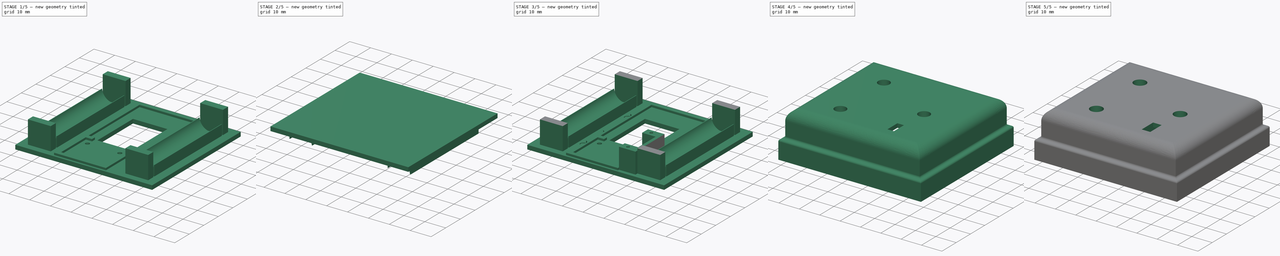
[diagram: build sequence overview — one tinted view per stage of 5, left to right]
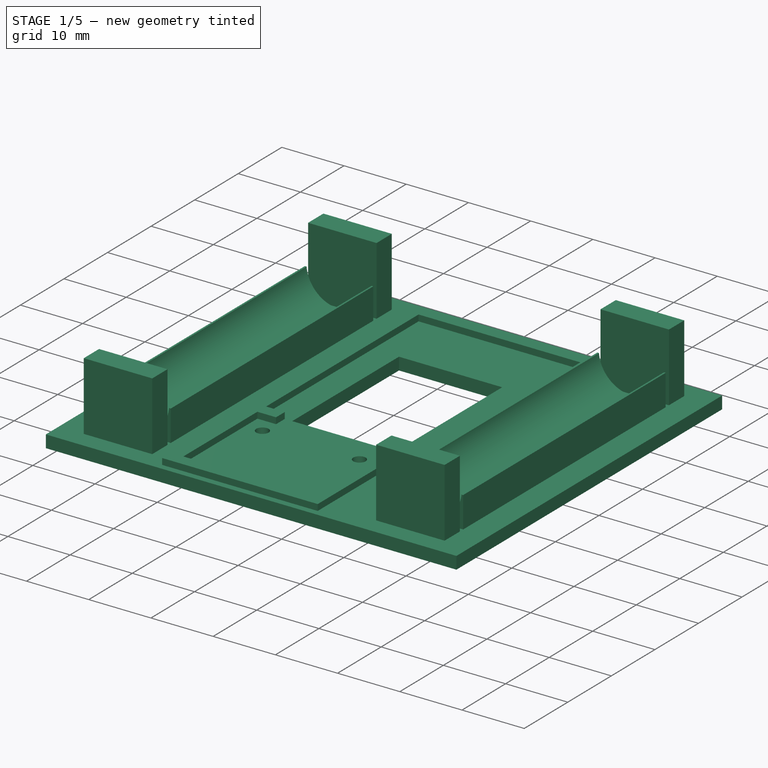
[diagram: stage 1 of 5 — iso view after this stage's code; geometry added in this stage tinted green]
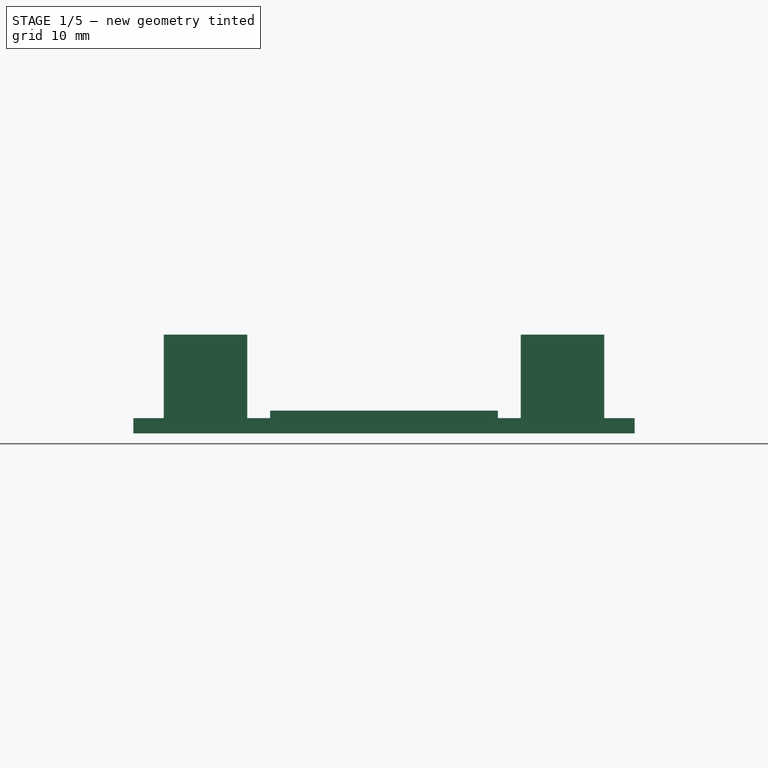
[diagram: stage 1 of 5 — front view after this stage's code; geometry added in this stage tinted green]
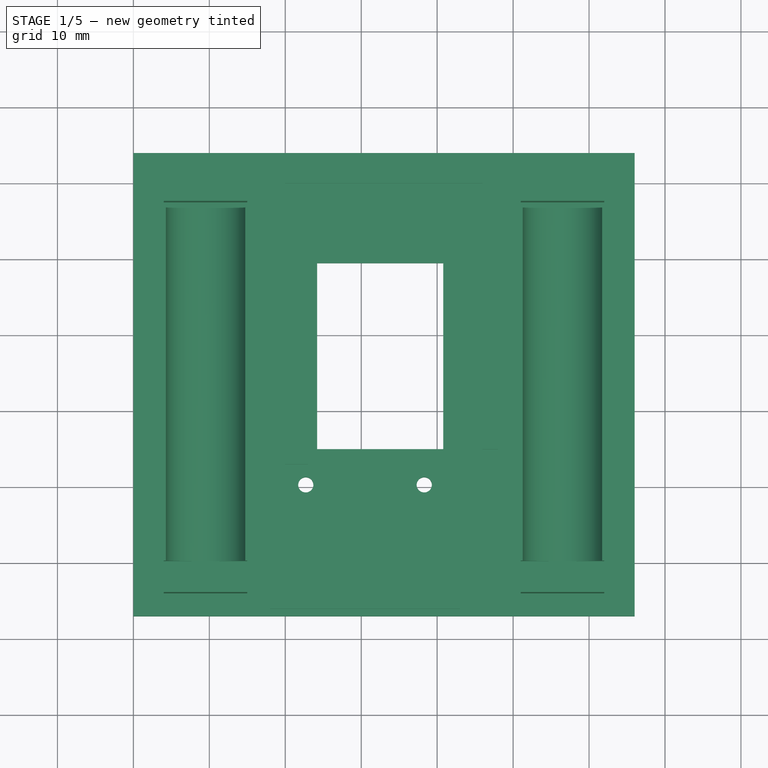
[diagram: stage 1 of 5 — top view after this stage's code; geometry added in this stage tinted green]
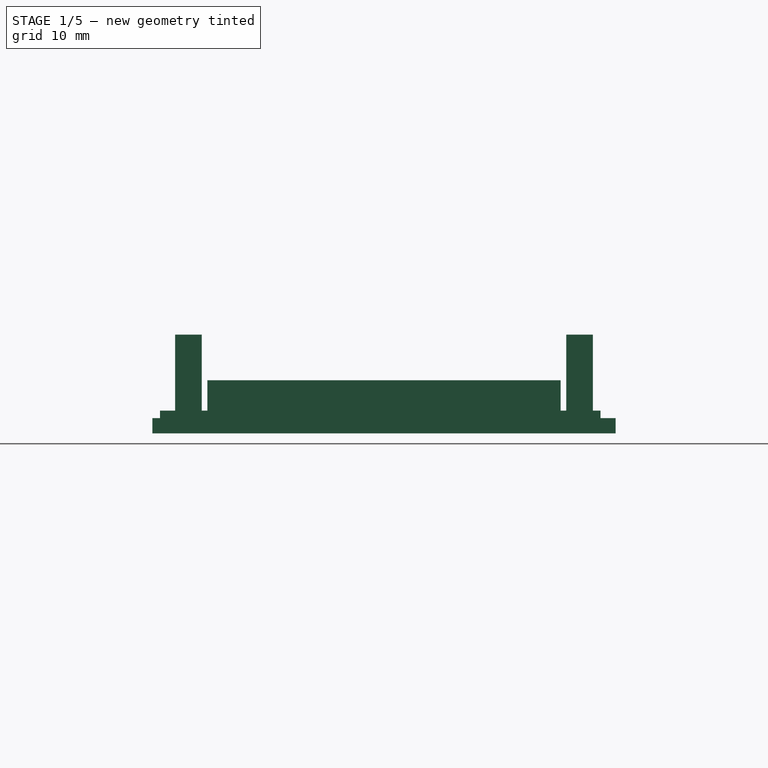
[diagram: stage 1 of 5 — right view after this stage's code; geometry added in this stage tinted green]
FCSTD DOCUMENT  (FreeCAD 0.19RUnknown)
Label: Option_4
License: All rights reserved
LicenseURL: http://en.wikipedia.org/wiki/All_rights_reserved
objects: Sketcher::SketchObject×40, PartDesign::Pad×20, PartDesign::Pocket×17, PartDesign::ShapeBinder×8, PartDesign::Plane×3, PartDesign::Body×3, PartDesign::Fillet×3, Spreadsheet::Sheet×1
note: 134 computed .brp shape members not serialized (recipe doc carries the construction recipe); baked Part::Feature solids carry a one-line shape summary decoded from their .brp

FEATURE [Sketcher::SketchObject] Sketch
  FullyConstrained = false
  MapMode = 5
  Support = -> [XY_Plane]
  expr: Constraints[53] = .Constraints.miejsce_na_bat / 2
  expr: Constraints[31] = .Constraints.miejsce_na_bat
  expr: Constraints[41] = .Constraints.miejsce_na_bat / 2
  expr: Constraints[32] = .Constraints.bat_thk
  expr: Constraints[39] = .Constraints.bat_off
  expr: .Constraints.miejsce_na_bat = Spreadsheet.miejsce__na_bat
  sketch-geometry (20):
    g0: LineSegment StartX=0 StartY=0 StartZ=0 EndX=26 EndY=0 EndZ=0
    g1: LineSegment StartX=26 StartY=0 StartZ=0 EndX=26 EndY=-35 EndZ=0
    g2: LineSegment StartX=26 StartY=-35 StartZ=0 EndX=0 EndY=-35 EndZ=0
    g3: LineSegment StartX=0 StartY=-35 StartZ=0 EndX=0 EndY=0 EndZ=0
    g4: LineSegment StartX=2.5 StartY=-36 StartZ=0 EndX=23.5 EndY=-36 EndZ=0
    g5: LineSegment StartX=23.5 StartY=-36 StartZ=0 EndX=23.5 EndY=-53 EndZ=0
    g6: LineSegment StartX=23.5 StartY=-53 StartZ=0 EndX=2.5 EndY=-53 EndZ=0
    g7: LineSegment StartX=2.5 StartY=-53 StartZ=0 EndX=2.5 EndY=-36 EndZ=0
    g8: LineSegment StartX=31 StartY=-2.5 StartZ=0 EndX=42 EndY=-2.5 EndZ=0
    g9: LineSegment StartX=42 StartY=-2.5 StartZ=0 EndX=42 EndY=-50.5 EndZ=0
    g10: LineSegment StartX=42 StartY=-50.5 StartZ=0 EndX=31 EndY=-50.5 EndZ=0
    g11: LineSegment StartX=31 StartY=-50.5 StartZ=0 EndX=31 EndY=-2.5 EndZ=0
    g12: LineSegment StartX=0 StartY=0 StartZ=0 EndX=0 EndY=-53 EndZ=0
    g13: LineSegment StartX=2.5 StartY=-53 StartZ=0 EndX=-10.5011 EndY=-53 EndZ=0
    g14: LineSegment StartX=29.1816 StartY=-26.5 StartZ=0 EndX=43.9765 EndY=-26.5 EndZ=0
    g15: LineSegment StartX=-16 StartY=-2.5 StartZ=0 EndX=-5 EndY=-2.5 EndZ=0
    g16: LineSegment StartX=-5 StartY=-2.5 StartZ=0 EndX=-5 EndY=-50.5 EndZ=0
    g17: LineSegment StartX=-5 StartY=-50.5 StartZ=0 EndX=-16 EndY=-50.5 EndZ=0
    g18: LineSegment StartX=-16 StartY=-50.5 StartZ=0 EndX=-16 EndY=-2.5 EndZ=0
    g19: LineSegment StartX=-17.7803 StartY=-26.5 StartZ=0 EndX=-3.25544 EndY=-26.5 EndZ=0
  constraints (57):
    c: Coincident(g0,g1)
    c: Coincident(g1,g2)
    c: Coincident(g2,g3)
    c: Coincident(g3,g0)
    c: Horizontal(g0)
    c: Horizontal(g2)
    c: Vertical(g1)
    c: Vertical(g3)
    c: Coincident(g0,g-1)
    c: DistanceY(g3,g3) = 35
    c: DistanceX(g0,g0) = 26
    c: Coincident(g4,g5)
    c: Coincident(g5,g6)
    c: Coincident(g6,g7)
    c: Coincident(g7,g4)
    c: Horizontal(g4)
    c: Horizontal(g6)
    c: Vertical(g5)
    c: Vertical(g7)
    c: DistanceY(g4,g2) = 1
    c: DistanceX(g4,g4) = 21
    c: DistanceY(g7,g7) = 17
    c: DistanceX(g2,g4) = 2.5
    c: Coincident(g8,g9)
    c: Coincident(g9,g10)
    c: Coincident(g10,g11)
    c: Coincident(g11,g8)
    c: Horizontal(g8)
    c: Horizontal(g10)
    c: Vertical(g9)
    c: Vertical(g11)
    c: DistanceY(g9,g9) = 48
    c: DistanceX(g8,g8) = 11
    c: Coincident(g12,g0)
    c: PointOnObject(g12,g-2)
    c: Coincident(g13,g6)
    c: Horizontal(g13)
    c: PointOnObject(g12,g13)
    c: DistanceY(g12,g12) = 53
    c: DistanceX(g0,g8) = 5
    c: Horizontal(g14)
    c: DistanceY(g14,g8) = 24
    c: DistanceY(g14,g0) = 26.5
    c: Coincident(g15,g16)
    c: Coincident(g16,g17)
    c: Coincident(g17,g18)
    c: Coincident(g18,g15)
    c: Horizontal(g15)
    c: Horizontal(g17)
    c: Vertical(g16)
    c: Vertical(g18)
    c: Horizontal(g19)
    c: DistanceY(g18,g18) = 48  'miejsce_na_bat'
    c: DistanceY(g19,g15) = 24
    c: DistanceY(g19,g0) = 26.5
    c: DistanceX(g15,g0) = 5  'bat_off'
    c: DistanceX(g15,g15) = 11  'bat_thk'
FEATURE [Sketcher::SketchObject] Sketch001
  ExternalGeometry = -> [Sketch]
  FullyConstrained = true
  MapMode = 5
  Support = -> [XY_Plane]
  sketch-geometry (8):
    g0: LineSegment StartX=-18 StartY=2 StartZ=0 EndX=44 EndY=2 EndZ=0
    g1: LineSegment StartX=44 StartY=2 StartZ=0 EndX=44 EndY=-55 EndZ=0
    g2: LineSegment StartX=44 StartY=-55 StartZ=0 EndX=-18 EndY=-55 EndZ=0
    g3: LineSegment StartX=-18 StartY=-55 StartZ=0 EndX=-18 EndY=2 EndZ=0
    g4: LineSegment StartX=-20 StartY=4 StartZ=0 EndX=46 EndY=4 EndZ=0
    g5: LineSegment StartX=46 StartY=4 StartZ=0 EndX=46 EndY=-57 EndZ=0
    g6: LineSegment StartX=46 StartY=-57 StartZ=0 EndX=-20 EndY=-57 EndZ=0
    g7: LineSegment StartX=-20 StartY=-57 StartZ=0 EndX=-20 EndY=4 EndZ=0
  constraints (24):
    c: Coincident(g0,g1)
    c: Coincident(g1,g2)
    c: Coincident(g2,g3)
    c: Coincident(g3,g0)
    c: Horizontal(g0)
    c: Horizontal(g2)
    c: Vertical(g1)
    c: Vertical(g3)
    c: DistanceX(g0,g-6) = 2  'off'
    c: DistanceX(g-5,g0) = 2
    c: DistanceY(g-1,g0) = 2
    c: DistanceY(g2,g-4) = 2
    c: Coincident(g4,g5)
    c: Coincident(g5,g6)
    c: Coincident(g6,g7)
    c: Coincident(g7,g4)
    c: Horizontal(g4)
    c: Horizontal(g6)
    c: Vertical(g5)
    c: Vertical(g7)
    c: DistanceX(g4,g0) = 2  'shell_thk'
    c: DistanceX(g0,g4) = 2
    c: DistanceY(g0,g4) = 2
    c: DistanceY(g6,g2) = 2
FEATURE [Sketcher::SketchObject] Sketch002
  ExternalGeometry = -> [Sketch]
  FullyConstrained = true
  MapMode = 5
  Support = -> [XY_Plane]
  expr: Constraints[19] = .Constraints.offset
  expr: Constraints[29] = .Constraints.offset
  expr: Constraints[39] = .Constraints.offset
  sketch-geometry (16):
    g0: LineSegment StartX=-16 StartY=-2.5 StartZ=0 EndX=-5 EndY=-2.5 EndZ=0
    g1: LineSegment StartX=-5 StartY=-2.5 StartZ=0 EndX=-5 EndY=1 EndZ=0
    g2: LineSegment StartX=-5 StartY=1 StartZ=0 EndX=-16 EndY=1 EndZ=0
    g3: LineSegment StartX=-16 StartY=1 StartZ=0 EndX=-16 EndY=-2.5 EndZ=0
    g4: LineSegment StartX=-16 StartY=-50.5 StartZ=0 EndX=-5 EndY=-50.5 EndZ=0
    g5: LineSegment StartX=-5 StartY=-50.5 StartZ=0 EndX=-5 EndY=-54 EndZ=0
    g6: LineSegment StartX=-5 StartY=-54 StartZ=0 EndX=-16 EndY=-54 EndZ=0
    g7: LineSegment StartX=-16 StartY=-54 StartZ=0 EndX=-16 EndY=-50.5 EndZ=0
    g8: LineSegment StartX=31 StartY=-2.5 StartZ=0 EndX=42 EndY=-2.5 EndZ=0
    g9: LineSegment StartX=42 StartY=-2.5 StartZ=0 EndX=42 EndY=1 EndZ=0
    g10: LineSegment StartX=42 StartY=1 StartZ=0 EndX=31 EndY=1 EndZ=0
    g11: LineSegment StartX=31 StartY=1 StartZ=0 EndX=31 EndY=-2.5 EndZ=0
    g12: LineSegment StartX=31 StartY=-50.5 StartZ=0 EndX=42 EndY=-50.5 EndZ=0
    g13: LineSegment StartX=42 StartY=-50.5 StartZ=0 EndX=42 EndY=-54 EndZ=0
    g14: LineSegment StartX=42 StartY=-54 StartZ=0 EndX=31 EndY=-54 EndZ=0
    g15: LineSegment StartX=31 StartY=-54 StartZ=0 EndX=31 EndY=-50.5 EndZ=0
  constraints (40):
    c: Coincident(g0,g1)
    c: Coincident(g1,g2)
    c: Coincident(g2,g3)
    c: Coincident(g3,g0)
    c: Horizontal(g2)
    c: Vertical(g1)
    c: Vertical(g3)
    c: Coincident(g0,g-4)
    c: Coincident(g0,g-5)
    c: DistanceY(g0,g2) = 3.5  'offset'
    c: Coincident(g4,g5)
    c: Coincident(g5,g6)
    c: Coincident(g6,g7)
    c: Coincident(g7,g4)
    c: Horizontal(g6)
    c: Vertical(g5)
    c: Vertical(g7)
    c: Coincident(g4,g-6)
    c: Coincident(g4,g-3)
    c: DistanceY(g5,g4) = 3.5
    c: Coincident(g8,g9)
    c: Coincident(g9,g10)
    c: Coincident(g10,g11)
    c: Coincident(g11,g8)
    c: Horizontal(g10)
    c: Vertical(g9)
    c: Vertical(g11)
    c: Coincident(g8,g-9)
    c: Coincident(g8,g-10)
    c: DistanceY(g8,g10) = 3.5
    c: Coincident(g12,g13)
    c: Coincident(g13,g14)
    c: Coincident(g14,g15)
    c: Coincident(g15,g12)
    c: Horizontal(g14)
    c: Vertical(g13)
    c: Vertical(g15)
    c: Coincident(g12,g-7)
    c: Coincident(g12,g-8)
    c: DistanceY(g14,g12) = 3.5
FEATURE [PartDesign::Pad] Pad
  Direction = (0,0,-1)
  Length = 2
  Length2 = 100
  Profile = -> Sketch001
  Type = 0
  UseCustomVector = true
FEATURE [PartDesign::Pad] Pad001
  BaseFeature = -> Pad
  Direction = (1,1,1)
  Length = 11
  Length2 = 100
  Profile = -> Sketch002
  Type = 0
FEATURE [PartDesign::Plane] DatumPlane
  AttachmentOffset = pos=(0,0,0.75) rot=(0,0,1;0rad)
  Length = 82.9164
  MapMode = 5
  Placement = pos=(0,-3.25,2e-16) rot=(1,0,0;1.5708rad)
  ResizeMode = 0
  Support = -> [Pad001]
  Width = 61.9164
FEATURE [Sketcher::SketchObject] Sketch003
  ExternalGeometry = -> [Sketch,Pad001]
  FullyConstrained = false
  MapMode = 5
  Placement = pos=(0,-3.25,2e-16) rot=(1,0,0;1.5708rad)
  Support = -> [DatumPlane]
  expr: Constraints[4] = Spreadsheet.batt_diam
  expr: Constraints[16] = Spreadsheet.batt_seat_h
  sketch-geometry (9):
    g0: LineSegment StartX=-18.9304 StartY=5.5 StartZ=0 EndX=1.66685 EndY=5.5 EndZ=0
    g1: LineSegment StartX=36.5 StartY=12.7731 StartZ=0 EndX=36.5 EndY=-0.787424 EndZ=0
    g2: LineSegment StartX=28.4443 StartY=5.5 StartZ=0 EndX=43.7985 EndY=5.5 EndZ=0
    g3: ArcOfCircle CenterX=36.5 CenterY=5.5 CenterZ=0 NormalX=0 NormalY=0 NormalZ=1 AngleXU=0 Radius=5.25 StartAngle=3.23698 EndAngle=6.1878
    g4: LineSegment StartX=31 StartY=5 StartZ=0 EndX=31.2739 EndY=5 EndZ=0
    g5: LineSegment StartX=42 StartY=5 StartZ=0 EndX=42 EndY=0 EndZ=0
    g6: LineSegment StartX=42 StartY=0 StartZ=0 EndX=31 EndY=0 EndZ=0
    g7: LineSegment StartX=31 StartY=0 StartZ=0 EndX=31 EndY=5 EndZ=0
    g8: LineSegment StartX=41.7261 StartY=5 StartZ=0 EndX=42 EndY=5 EndZ=0
  constraints (20):
    c: DistanceX(g-5,g-4) = 11  't'
    c: Symmetric(g-5,g-4,g1)
    c: Symmetric(g-6,g-6,g2)
    c: PointOnObject(g3,g2)
    c: Diameter(g3) = 10.5
    c: PointOnObject(g3,g1)
    c: Coincident(g8,g5)
    c: Coincident(g5,g6)
    c: Coincident(g6,g7)
    c: Coincident(g7,g4)
    c: Horizontal(g4)
    c: Horizontal(g6)
    c: Vertical(g5)
    c: Vertical(g7)
    c: PointOnObject(g4,g-6)
    c: Coincident(g5,g-7)
    c: DistanceY(g6,g4) = 5
    c: Tangent(g4,g8)
    c: Coincident(g3,g4)
    c: Coincident(g3,g8)
FEATURE [PartDesign::Pad] Pad002
  BaseFeature = -> Pad001
  Direction = (1,1,1)
  Length = 46.5
  Length2 = 100
  Profile = -> Sketch003
  Type = 0
  expr: Length = Spreadsheet.miejsce__na_bat - 1.5
FEATURE [Sketcher::SketchObject] Sketch004
  ExternalGeometry = -> [Pad002]
  FullyConstrained = false
  MapMode = 5
  Placement = pos=(0,-3.25,2e-16) rot=(1,0,0;1.5708rad)
  Support = -> [DatumPlane]
  expr: Constraints[4] = Spreadsheet.batt_diam
  expr: Constraints[15] = Spreadsheet.batt_seat_h
  sketch-geometry (8):
    g0: LineSegment StartX=-19.9058 StartY=5.5 StartZ=0 EndX=-1.55753 EndY=5.5 EndZ=0
    g1: LineSegment StartX=-10.5 StartY=14.1785 StartZ=0 EndX=-10.5 EndY=-5.57841 EndZ=0
    g2: ArcOfCircle CenterX=-10.5 CenterY=5.5 CenterZ=0 NormalX=0 NormalY=0 NormalZ=1 AngleXU=0 Radius=5.25 StartAngle=3.23698 EndAngle=6.1878
    g3: LineSegment StartX=-16 StartY=5 StartZ=0 EndX=-15.7261 EndY=5 EndZ=0
    g4: LineSegment StartX=-5 StartY=5 StartZ=0 EndX=-5 EndY=0 EndZ=0
    g5: LineSegment StartX=-5 StartY=0 StartZ=0 EndX=-16 EndY=0 EndZ=0
    g6: LineSegment StartX=-16 StartY=0 StartZ=0 EndX=-16 EndY=5 EndZ=0
    g7: LineSegment StartX=-5.27386 StartY=5 StartZ=0 EndX=-5 EndY=5 EndZ=0
  constraints (19):
    c: Symmetric(g-3,g-3,g0)
    c: Symmetric(g-3,g-4,g1)
    c: PointOnObject(g2,g0)
    c: PointOnObject(g2,g1)
    c: Diameter(g2) = 10.5
    c: Coincident(g7,g4)
    c: Coincident(g4,g5)
    c: Coincident(g5,g6)
    c: Coincident(g6,g3)
    c: Horizontal(g3)
    c: Horizontal(g5)
    c: Vertical(g4)
    c: Vertical(g6)
    c: PointOnObject(g3,g-3)
    c: Coincident(g4,g-4)
    c: DistanceY(g6,g6) = 5
    c: Coincident(g3,g2)
    c: Tangent(g3,g7)
    c: Coincident(g2,g7)
FEATURE [Spreadsheet::Sheet] Spreadsheet  label="wym"
  cells = A1=batt_diam; B1(batt_diam)=10.5; A2=batt_seat_h; B2(batt_seat_h)=5; A3=miejsc_na_bat; B3(miejsce__na_bat)=48; A4=shell_thk; B4(shell_thk)=2; A5=magnet; B5(magnet)=10.5; A6=podst_wlacznika; B6(podst_wlacznika)=7.99
FEATURE [PartDesign::Pad] Pad003
  BaseFeature = -> Pad002
  Direction = (1,1,1)
  Length = 46.5
  Length2 = 100
  Profile = -> Sketch004
  Type = 0
  expr: Length = Spreadsheet.miejsce__na_bat - 1.5
FEATURE [Sketcher::SketchObject] Sketch005
  ExternalGeometry = -> [Sketch]
  FullyConstrained = false
  MapMode = 5
  Support = -> [Pad003]
  sketch-geometry (7):
    g0: LineSegment StartX=0.2 StartY=6.76826 StartZ=0 EndX=0.2 EndY=-33.7386 EndZ=0
    g1: LineSegment StartX=25.8 StartY=7.22803 StartZ=0 EndX=25.8 EndY=-35.3232 EndZ=0
    g2: LineSegment StartX=4.2 StartY=-35 StartZ=0 EndX=20.8 EndY=-35 EndZ=0
    g3: LineSegment StartX=20.8 StartY=-35 StartZ=0 EndX=20.8 EndY=-10.5 EndZ=0
    g4: LineSegment StartX=20.8 StartY=-10.5 StartZ=0 EndX=4.2 EndY=-10.5 EndZ=0
    g5: LineSegment StartX=4.2 StartY=-10.5 StartZ=0 EndX=4.2 EndY=-35 EndZ=0
    g6: LineSegment StartX=0 StartY=-35 StartZ=0 EndX=26 EndY=-35 EndZ=0
  constraints (20):
    c: DistanceY(g-3,g-1) = 35
    c: DistanceX(g-3,g-4) = 26
    c: Vertical(g0)
    c: Vertical(g1)
    c: DistanceX(g-1,g0) = 0.2
    c: DistanceX(g1,g-5) = 0.2
    c: Coincident(g2,g3)
    c: Coincident(g3,g4)
    c: Coincident(g4,g5)
    c: Coincident(g5,g2)
    c: Horizontal(g2)
    c: Horizontal(g4)
    c: Vertical(g3)
    c: Vertical(g5)
    c: DistanceX(g0,g2) = 4
    c: Coincident(g6,g-3)
    c: Coincident(g6,g-4)
    c: PointOnObject(g2,g6)
    c: DistanceX(g2,g1) = 5
    c: DistanceY(g2,g3) = 24.5
FEATURE [PartDesign::Pocket] Pocket
  BaseFeature = -> Pad003
  Length = 5
  Length2 = 100
  Profile = -> Sketch005
  Type = 0
FEATURE [Sketcher::SketchObject] Sketch006
  ExternalGeometry = -> [Sketch]
  FullyConstrained = true
  MapMode = 5
  Support = -> [Pocket]
  sketch-geometry (12):
    g0: LineSegment StartX=0 StartY=-35 StartZ=0 EndX=-2 EndY=-35 EndZ=0
    g1: LineSegment StartX=-2 StartY=-35 StartZ=0 EndX=-2 EndY=2 EndZ=0
    g2: LineSegment StartX=-2 StartY=2 StartZ=0 EndX=0 EndY=2 EndZ=0
    g3: LineSegment StartX=0 StartY=2 StartZ=0 EndX=0 EndY=-35 EndZ=0
    g4: LineSegment StartX=26 StartY=-35 StartZ=0 EndX=28 EndY=-35 EndZ=0
    g5: LineSegment StartX=28 StartY=-35 StartZ=0 EndX=28 EndY=2 EndZ=0
    g6: LineSegment StartX=28 StartY=2 StartZ=0 EndX=26 EndY=2 EndZ=0
    g7: LineSegment StartX=26 StartY=2 StartZ=0 EndX=26 EndY=-35 EndZ=0
    g8: LineSegment StartX=0 StartY=2 StartZ=0 EndX=26 EndY=2 EndZ=0
    g9: LineSegment StartX=26 StartY=2 StartZ=0 EndX=26 EndY=0 EndZ=0
    g10: LineSegment StartX=26 StartY=0 StartZ=0 EndX=0 EndY=0 EndZ=0
    g11: LineSegment StartX=0 StartY=0 StartZ=0 EndX=0 EndY=2 EndZ=0
  constraints (31):
    c: Coincident(g0,g1)
    c: Coincident(g1,g2)
    c: Coincident(g2,g3)
    c: Coincident(g3,g0)
    c: Horizontal(g0)
    c: Horizontal(g2)
    c: Vertical(g1)
    c: Vertical(g3)
    c: Coincident(g0,g-5)
    c: Coincident(g4,g5)
    c: Coincident(g5,g6)
    c: Coincident(g6,g7)
    c: Coincident(g7,g4)
    c: Horizontal(g4)
    c: Horizontal(g6)
    c: Vertical(g5)
    c: Vertical(g7)
    c: Coincident(g4,g-4)
    c: Coincident(g8,g9)
    c: Coincident(g9,g10)
    c: Coincident(g10,g11)
    c: Coincident(g11,g8)
    c: Horizontal(g8)
    c: Horizontal(g10)
    c: Vertical(g11)
    c: Coincident(g8,g2)
    c: Coincident(g9,g-3)
    c: Coincident(g6,g8)
    c: DistanceY(g10,g2) = 2
    c: DistanceX(g1,g2) = 2
    c: DistanceX(g6,g5) = 2
FEATURE [PartDesign::Pad] Pad004
  BaseFeature = -> Pocket
  Direction = (1,1,1)
  Length = 1
  Length2 = 100
  Profile = -> Sketch006
  Type = 0
FEATURE [Sketcher::SketchObject] Sketch007
  ExternalGeometry = -> [Pad004]
  FullyConstrained = false
  MapMode = 5
  Support = -> [Pad004]
  sketch-geometry (21):
    g0: LineSegment StartX=0 StartY=-37 StartZ=0 EndX=21 EndY=-37 EndZ=0
    g1: LineSegment StartX=21 StartY=-37 StartZ=0 EndX=21 EndY=-54 EndZ=0
    g2: LineSegment StartX=21 StartY=-54 StartZ=0 EndX=0 EndY=-54 EndZ=0
    g3: LineSegment StartX=0 StartY=-54 StartZ=0 EndX=0 EndY=-37 EndZ=0
    g4: LineSegment StartX=0 StartY=-35 StartZ=0 EndX=0 EndY=-58.3065 EndZ=0
    g5: LineSegment StartX=-2 StartY=-35 StartZ=0 EndX=3 EndY=-35 EndZ=0
    g6: LineSegment StartX=3 StartY=-35 StartZ=0 EndX=3 EndY=-37 EndZ=0
    g7: LineSegment StartX=3 StartY=-37 StartZ=0 EndX=-2 EndY=-37 EndZ=0
    g8: LineSegment StartX=-2 StartY=-37 StartZ=0 EndX=-2 EndY=-35 EndZ=0
    g9: LineSegment StartX=-2 StartY=-37 StartZ=0 EndX=0 EndY=-37 EndZ=0
    g10: LineSegment StartX=0 StartY=-37 StartZ=0 EndX=0 EndY=-54 EndZ=0
    g11: LineSegment StartX=0 StartY=-54 StartZ=0 EndX=-2 EndY=-54 EndZ=0
    g12: LineSegment StartX=-2 StartY=-54 StartZ=0 EndX=-2 EndY=-37 EndZ=0
    g13: LineSegment StartX=-2 StartY=-54 StartZ=0 EndX=23 EndY=-54 EndZ=0
    g14: LineSegment StartX=23 StartY=-54 StartZ=0 EndX=23 EndY=-56 EndZ=0
    g15: LineSegment StartX=23 StartY=-56 StartZ=0 EndX=-2 EndY=-56 EndZ=0
    g16: LineSegment StartX=-2 StartY=-56 StartZ=0 EndX=-2 EndY=-54 EndZ=0
    g17: LineSegment StartX=23 StartY=-54 StartZ=0 EndX=21 EndY=-54 EndZ=0
    g18: LineSegment StartX=21 StartY=-54 StartZ=0 EndX=21 EndY=-37 EndZ=0
    g19: LineSegment StartX=21 StartY=-37 StartZ=0 EndX=23 EndY=-37 EndZ=0
    g20: LineSegment StartX=23 StartY=-37 StartZ=0 EndX=23 EndY=-54 EndZ=0
  constraints (56):
    c: Coincident(g0,g1)
    c: Coincident(g1,g2)
    c: Coincident(g2,g3)
    c: Coincident(g3,g0)
    c: Horizontal(g0)
    c: Horizontal(g2)
    c: Vertical(g1)
    c: Vertical(g3)
    c: Coincident(g4,g-3)
    c: PointOnObject(g4,g-2)
    c: PointOnObject(g0,g4)
    c: DistanceX(g0,g0) = 21
    c: DistanceY(g3,g3) = 17
    c: DistanceY(g0,g4) = 2
    c: Coincident(g5,g6)
    c: Coincident(g6,g7)
    c: Coincident(g7,g8)
    c: Coincident(g8,g5)
    c: Horizontal(g5)
    c: Horizontal(g7)
    c: Vertical(g6)
    c: Vertical(g8)
    c: Coincident(g5,g-4)
    c: PointOnObject(g6,g0)
    c: DistanceX(g4,g5) = 3
    c: Coincident(g9,g10)
    c: Coincident(g10,g11)
    c: Coincident(g11,g12)
    c: Coincident(g12,g9)
    c: Horizontal(g9)
    c: Horizontal(g11)
    c: Vertical(g10)
    c: Vertical(g12)
    c: Coincident(g9,g7)
    c: Coincident(g10,g2)
    c: Coincident(g13,g14)
    c: Coincident(g14,g15)
    c: Coincident(g15,g16)
    c: Coincident(g16,g13)
    c: Horizontal(g13)
    c: Horizontal(g15)
    c: Vertical(g14)
    c: Vertical(g16)
    c: Coincident(g13,g11)
    c: Coincident(g17,g18)
    c: Coincident(g18,g19)
    c: Coincident(g19,g20)
    c: Coincident(g20,g17)
    c: Horizontal(g17)
    c: Horizontal(g19)
    c: Vertical(g18)
    c: Vertical(g20)
    c: Coincident(g17,g13)
    c: Coincident(g18,g0)
    c: DistanceX(g18,g19) = 2
    c: DistanceY(g14,g13) = 2
FEATURE [PartDesign::Pad] Pad005
  BaseFeature = -> Pad004
  Direction = (1,1,1)
  Length = 1
  Length2 = 100
  Profile = -> Sketch007
  Type = 0
FEATURE [Sketcher::SketchObject] Sketch008
  ExternalGeometry = -> [Pad005]
  FullyConstrained = false
  MapMode = 5
  Support = -> [Pad005]
  sketch-geometry (7):
    g0: LineSegment StartX=1 StartY=-33.3562 StartZ=0 EndX=1 EndY=-44.6497 EndZ=0
    g1: LineSegment StartX=-1.41668 StartY=-38 StartZ=0 EndX=23.3481 EndY=-38 EndZ=0
    g2: LineSegment StartX=20 StartY=-35.6944 StartZ=0 EndX=20 EndY=-45.9709 EndZ=0
    g3: Circle CenterX=2.7 CenterY=-39.7 CenterZ=0 NormalX=0 NormalY=0 NormalZ=1 AngleXU=0 Radius=1.7
    g4: Circle CenterX=2.7 CenterY=-39.7 CenterZ=0 NormalX=0 NormalY=0 NormalZ=1 AngleXU=0 Radius=1
    g5: Circle CenterX=18.3 CenterY=-39.7 CenterZ=0 NormalX=0 NormalY=0 NormalZ=1 AngleXU=0 Radius=1.7
    g6: Circle CenterX=18.3 CenterY=-39.7 CenterZ=0 NormalX=0 NormalY=0 NormalZ=1 AngleXU=0 Radius=1
  constraints (16):
    c: Horizontal(g1)
    c: Vertical(g2)
    c: Vertical(g0)
    c: DistanceY(g1,g-3) = 1
    c: DistanceX(g2,g-5) = 1
    c: DistanceX(g-4,g0) = 1
    c: Diameter(g3) = 3.4
    c: Tangent(g1,g3)
    c: Tangent(g0,g3)
    c: Coincident(g4,g3)
    c: Diameter(g4) = 2
    c: Diameter(g5) = 3.4
    c: Tangent(g5,g1)
    c: Tangent(g5,g2)
    c: Coincident(g6,g5)
    c: Diameter(g6) = 2
FEATURE [PartDesign::Pocket] Pocket001
  BaseFeature = -> Pad005
  Length = 5
  Length2 = 100
  Profile = -> Sketch008
  Type = 0
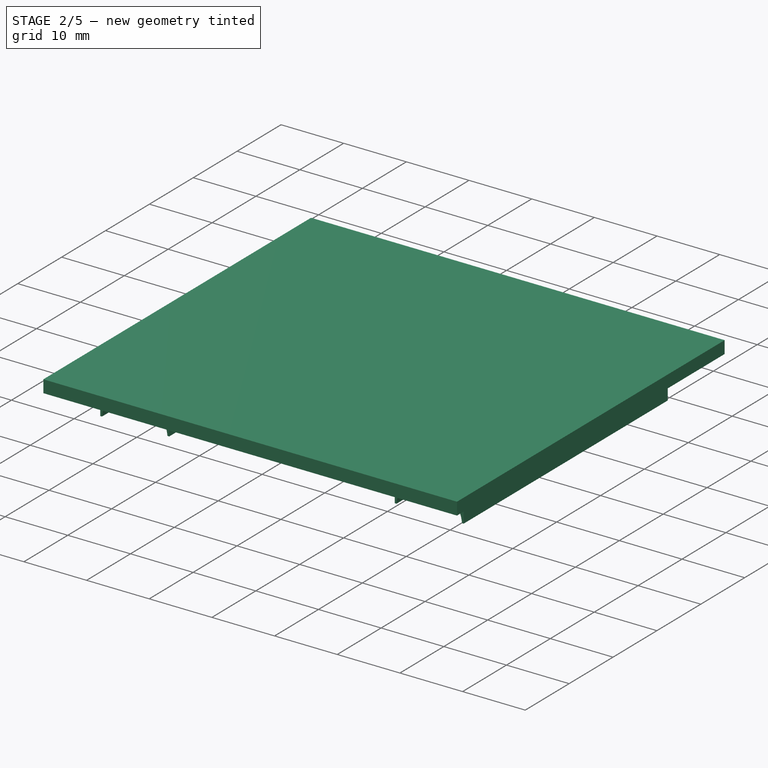
[diagram: stage 2 of 5 — iso view after this stage's code; geometry added in this stage tinted green]
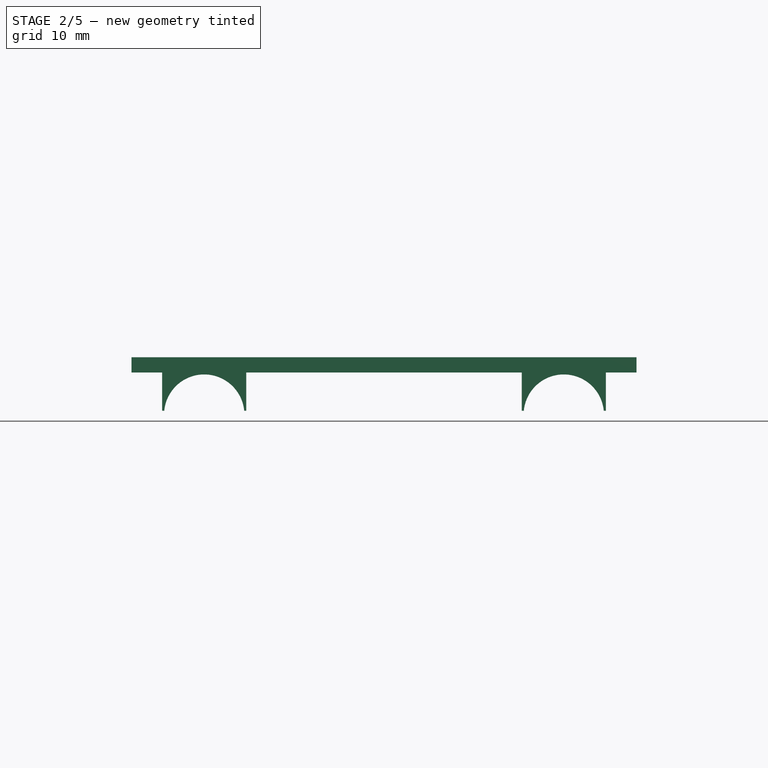
[diagram: stage 2 of 5 — front view after this stage's code; geometry added in this stage tinted green]
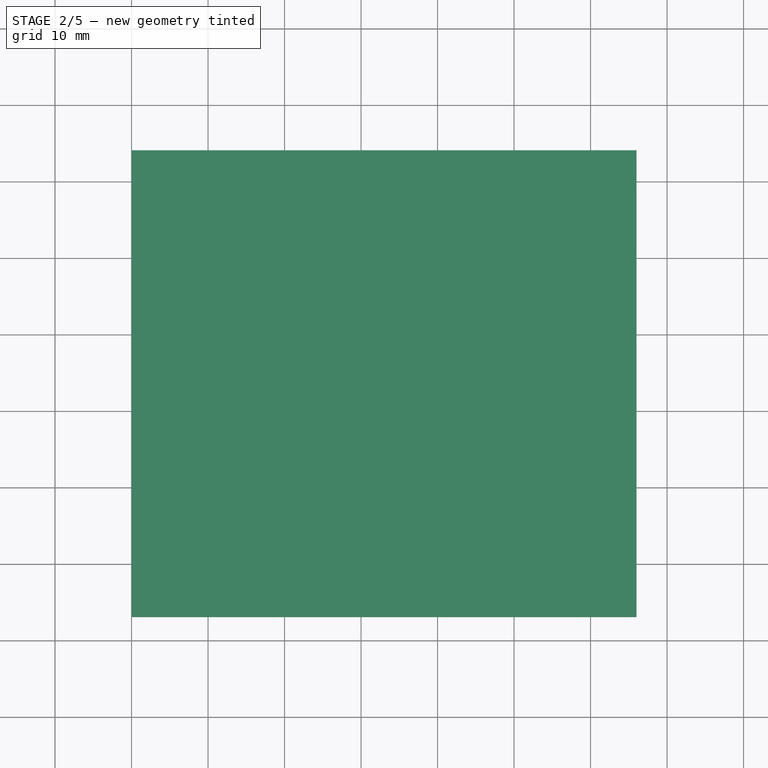
[diagram: stage 2 of 5 — top view after this stage's code; geometry added in this stage tinted green]
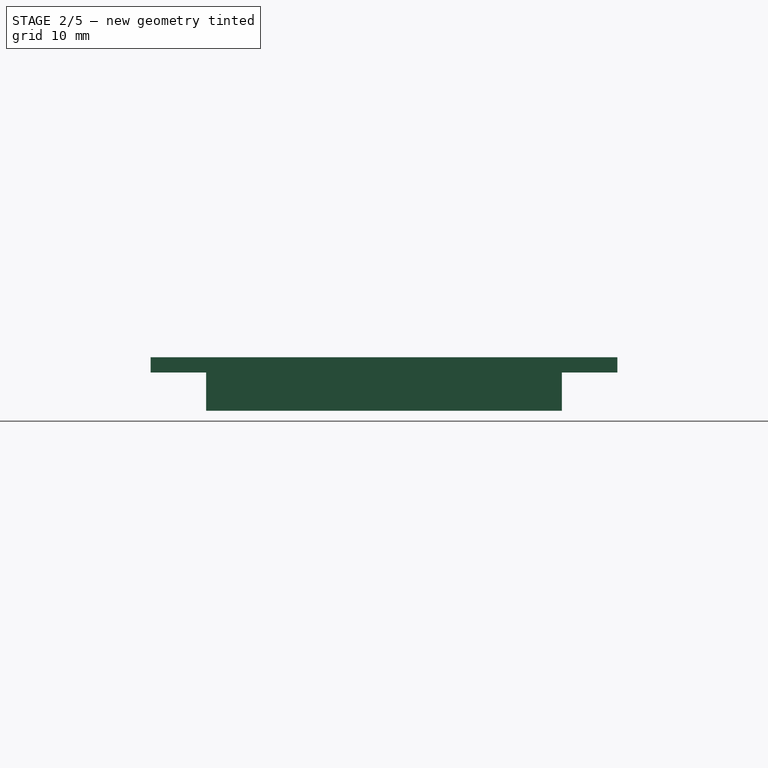
[diagram: stage 2 of 5 — right view after this stage's code; geometry added in this stage tinted green]
FEATURE [Sketcher::SketchObject] Sketch009
  ExternalGeometry = -> [Pocket001]
  FullyConstrained = true
  MapMode = 5
  Support = -> [Pocket001]
  expr: Constraints[22] = Spreadsheet.podst_wlacznika
  expr: Constraints[9] = Spreadsheet.podst_wlacznika
  sketch-geometry (8):
    g0: LineSegment StartX=31 StartY=-35.3 StartZ=0 EndX=23.01 EndY=-35.3 EndZ=0
    g1: LineSegment StartX=23.01 StartY=-35.3 StartZ=0 EndX=23.01 EndY=-39.3 EndZ=0
    g2: LineSegment StartX=23.01 StartY=-39.3 StartZ=0 EndX=31 EndY=-39.3 EndZ=0
    g3: LineSegment StartX=31 StartY=-39.3 StartZ=0 EndX=31 EndY=-35.3 EndZ=0
    g4: LineSegment StartX=31 StartY=-51.3 StartZ=0 EndX=23.01 EndY=-51.3 EndZ=0
    g5: LineSegment StartX=23.01 StartY=-51.3 StartZ=0 EndX=23.01 EndY=-55.3 EndZ=0
    g6: LineSegment StartX=23.01 StartY=-55.3 StartZ=0 EndX=31 EndY=-55.3 EndZ=0
    g7: LineSegment StartX=31 StartY=-55.3 StartZ=0 EndX=31 EndY=-51.3 EndZ=0
  constraints (24):
    c: Coincident(g0,g1)
    c: Coincident(g1,g2)
    c: Coincident(g2,g3)
    c: Coincident(g3,g0)
    c: Horizontal(g0)
    c: Horizontal(g2)
    c: Vertical(g1)
    c: Vertical(g3)
    c: DistanceY(g0,g-3) = 0.3
    c: DistanceX(g0,g0) = 7.99
    c: PointOnObject(g2,g-4)
    c: DistanceY(g1,g1) = 4
    c: Coincident(g4,g5)
    c: Coincident(g5,g6)
    c: Coincident(g6,g7)
    c: Coincident(g7,g4)
    c: Horizontal(g4)
    c: Horizontal(g6)
    c: Vertical(g5)
    c: Vertical(g7)
    c: PointOnObject(g4,g-4)
    c: DistanceY(g5,g5) = 4
    c: DistanceX(g4,g4) = 7.99
    c: DistanceY(g5,g0) = 20
FEATURE [PartDesign::Pad] Pad006
  BaseFeature = -> Pocket001
  Direction = (1,1,1)
  Length = 10
  Length2 = 100
  Profile = -> Sketch009
  Type = 0
FEATURE [Sketcher::SketchObject] Sketch010
  ExternalGeometry = -> [Pad006]
  FullyConstrained = false
  MapMode = 5
  Placement = pos=(0,0,10) rot=(0,0,1;0rad)
  Support = -> [Pad006]
  sketch-geometry (3):
    g0: Circle CenterX=26.01 CenterY=-37.3 CenterZ=0 NormalX=0 NormalY=0 NormalZ=1 AngleXU=0 Radius=0.75
    g1: Circle CenterX=26.01 CenterY=-53.3 CenterZ=0 NormalX=0 NormalY=0 NormalZ=1 AngleXU=0 Radius=0.75
    g2: LineSegment StartX=26.01 StartY=-37.3 StartZ=0 EndX=26.01 EndY=-54.8221 EndZ=0
  constraints (8):
    c: DistanceX(g-4,g0) = 3
    c: DistanceY(g-5,g0) = 2
    c: Diameter(g0) = 1.5
    c: Coincident(g2,g0)
    c: Vertical(g2)
    c: PointOnObject(g1,g2)
    c: DistanceY(g1,g-7) = 2
    c: Diameter(g1) = 1.5
FEATURE [PartDesign::Pocket] Pocket002
  BaseFeature = -> Pad006
  Length = 5
  Length2 = 100
  Profile = -> Sketch010
  Type = 0
FEATURE [PartDesign::ShapeBinder] ShapeBinder
  Support = -> [Pocket002]
  TraceSupport = true
FEATURE [PartDesign::Plane] DatumPlane002
  AttachmentOffset = pos=(0,0,0.75) rot=(0,0,1;0rad)
  Length = 85.083
  MapMode = 5
  Placement = pos=(0,-3.25,2e-16) rot=(1,0,0;1.5708rad)
  ResizeMode = 0
  Support = -> [ShapeBinder]
  Width = 62.083
FEATURE [Sketcher::SketchObject] Sketch011
  ExternalGeometry = -> [ShapeBinder]
  FullyConstrained = true
  MapMode = 5
  Placement = pos=(0,-3.25,2e-16) rot=(1,0,0;1.5708rad)
  Support = -> [DatumPlane002]
  expr: Constraints[4] = Spreadsheet.batt_diam
  expr: Constraints[15] = Spreadsheet.batt_seat_h
  sketch-geometry (9):
    g0: LineSegment StartX=-10.5 StartY=15.21 StartZ=0 EndX=-10.5 EndY=-1.97 EndZ=0
    g1: LineSegment StartX=-19.57 StartY=5.5 StartZ=0 EndX=-1.34 EndY=5.5 EndZ=0
    g2: ArcOfCircle CenterX=-10.5 CenterY=5.5 CenterZ=0 NormalX=0 NormalY=0 NormalZ=1 AngleXU=0 Radius=5.25 StartAngle=3.14159 EndAngle=6.28319
    g3: LineSegment StartX=-5 StartY=11 StartZ=0 EndX=-16 EndY=11 EndZ=0
    g4: LineSegment StartX=-16 StartY=11 StartZ=0 EndX=-16 EndY=6 EndZ=0
    g5: LineSegment StartX=-16 StartY=6 StartZ=0 EndX=-15.7261 EndY=6 EndZ=0
    g6: LineSegment StartX=-5 StartY=6 StartZ=0 EndX=-5 EndY=11 EndZ=0
    g7: LineSegment StartX=-5.27386 StartY=6 StartZ=0 EndX=-5 EndY=6 EndZ=0
    g8: ArcOfCircle CenterX=-10.5 CenterY=5.5 CenterZ=0 NormalX=0 NormalY=0 NormalZ=1 AngleXU=0 Radius=5.25 StartAngle=0.0953827 EndAngle=3.04621
  constraints (27):
    c: Symmetric(g-4,g-3,g0)
    c: Symmetric(g-4,g-4,g1)
    c: PointOnObject(g2,g1)
    c: PointOnObject(g2,g0)
    c: Diameter(g2) = 10.5
    c: Coincident(g3,g4)
    c: Coincident(g4,g5)
    c: Coincident(g7,g6)
    c: Coincident(g6,g3)
    c: Horizontal(g3)
    c: Horizontal(g5)
    c: Vertical(g4)
    c: Vertical(g6)
    c: Coincident(g3,g-3)
    c: PointOnObject(g4,g-4)
    c: DistanceY(g7,g3) = 5
    c: Tangent(g5,g7)
    c: PointOnObject(g2,g1)
    c: Coincident(g8,g5)
    c: Equal(g2,g8)
    c: PointOnObject(g2,g1)
    c: Coincident(g8,g7)
    c: Coincident(g2,g8)
    c: DistanceX(g1,g-1) = 1.34
    c: DistanceY(g-1,g0) = 15.21
    c: DistanceX(g1,g-1) = 19.57
    c: DistanceY(g0,g-1) = 1.97
FEATURE [PartDesign::Pad] Pad007
  Direction = (1,1,1)
  Length = 46.5
  Length2 = 100
  Placement = pos=(0,-3.25,2e-16) rot=(1,0,0;1.5708rad)
  Profile = -> Sketch011
  Type = 0
  expr: Length = Spreadsheet.miejsce__na_bat - 1.5
FEATURE [Sketcher::SketchObject] Sketch012
  ExternalGeometry = -> [ShapeBinder,Pad007]
  FullyConstrained = false
  MapMode = 5
  Placement = pos=(0,-3.25,2e-16) rot=(1,0,0;1.5708rad)
  Support = -> [DatumPlane002]
  expr: Constraints[6] = Spreadsheet.batt_diam
  expr: Constraints[17] = Spreadsheet.batt_seat_h
  expr: Constraints[34] = Spreadsheet.shell_thk
  sketch-geometry (13):
    g0: LineSegment StartX=36.5 StartY=12.8596 StartZ=0 EndX=36.5 EndY=0 EndZ=0
    g1: LineSegment StartX=31 StartY=5.5 StartZ=0 EndX=42.3063 EndY=5.5 EndZ=0
    g2: ArcOfCircle CenterX=36.5 CenterY=5.5 CenterZ=0 NormalX=0 NormalY=0 NormalZ=1 AngleXU=0 Radius=5.25 StartAngle=3.14159 EndAngle=6.28319
    g3: LineSegment StartX=42 StartY=11 StartZ=0 EndX=31 EndY=11 EndZ=0
    g4: LineSegment StartX=31 StartY=11 StartZ=0 EndX=31 EndY=6 EndZ=0
    g5: LineSegment StartX=31 StartY=6 StartZ=0 EndX=31.2739 EndY=6 EndZ=0
    g6: LineSegment StartX=42 StartY=6 StartZ=0 EndX=42 EndY=11 EndZ=0
    g7: ArcOfCircle CenterX=36.5 CenterY=5.5 CenterZ=0 NormalX=0 NormalY=0 NormalZ=1 AngleXU=0 Radius=5.25 StartAngle=0.0953827 EndAngle=3.04621
    g8: LineSegment StartX=41.7261 StartY=6 StartZ=0 EndX=42 EndY=6 EndZ=0
    g9: LineSegment StartX=-16 StartY=11 StartZ=0 EndX=42 EndY=11 EndZ=0
    g10: LineSegment StartX=42 StartY=11 StartZ=0 EndX=42 EndY=13 EndZ=0
    g11: LineSegment StartX=42 StartY=13 StartZ=0 EndX=-16 EndY=13 EndZ=0
    g12: LineSegment StartX=-16 StartY=13 StartZ=0 EndX=-16 EndY=11 EndZ=0
  constraints (35):
    c: PointOnObject(g0,g-1)
    c: Symmetric(g-4,g-4,g0)
    c: PointOnObject(g1,g-3)
    c: Symmetric(g-4,g-3,g1)
    c: PointOnObject(g2,g1)
    c: PointOnObject(g2,g0)
    c: Diameter(g2) = 10.5
    c: Coincident(g3,g4)
    c: Coincident(g4,g5)
    c: Coincident(g8,g6)
    c: Coincident(g6,g3)
    c: Horizontal(g3)
    c: Horizontal(g5)
    c: Vertical(g4)
    c: Vertical(g6)
    c: Coincident(g3,g-4)
    c: PointOnObject(g4,g-3)
    c: DistanceY(g4,g3) = 5
    c: PointOnObject(g2,g1)
    c: Equal(g2,g7)
    c: PointOnObject(g2,g1)
    c: Coincident(g2,g7)
    c: Coincident(g8,g7)
    c: Tangent(g5,g8)
    c: Coincident(g5,g7)
    c: Coincident(g9,g10)
    c: Coincident(g10,g11)
    c: Coincident(g11,g12)
    c: Coincident(g12,g9)
    c: Horizontal(g11)
    c: Vertical(g10)
    c: Vertical(g12)
    c: Coincident(g9,g-6)
    c: Coincident(g9,g3)
    c: DistanceY(g10,g10) = 2
FEATURE [PartDesign::Pad] Pad008
  BaseFeature = -> Pad007
  Direction = (1,1,1)
  Length = 10
  Length2 = 100
  Placement = pos=(0,-3.25,2e-16) rot=(1,0,0;1.5708rad)
  Profile = -> Sketch012
  Type = 3
  UpToFace = -> Pad007 [Face8]
FEATURE [PartDesign::ShapeBinder] ShapeBinder001
  Support = -> [Pocket002]
  TraceSupport = true
FEATURE [Sketcher::SketchObject] Sketch013
  ExternalGeometry = -> [Pad008]
  FullyConstrained = true
  MapMode = 5
  Placement = pos=(42,-3.25,2e-16) rot=(0.707107,0,0.707107;3.14159rad)
  Support = -> [Pad008]
  sketch-geometry (4):
    g0: LineSegment StartX=11 StartY=0 StartZ=0 EndX=13 EndY=0 EndZ=0
    g1: LineSegment StartX=13 StartY=0 StartZ=0 EndX=13 EndY=46.5 EndZ=0
    g2: LineSegment StartX=13 StartY=46.5 StartZ=0 EndX=11 EndY=46.5 EndZ=0
    g3: LineSegment StartX=11 StartY=46.5 StartZ=0 EndX=11 EndY=0 EndZ=0
  constraints (10):
    c: Coincident(g0,g1)
    c: Coincident(g1,g2)
    c: Coincident(g2,g3)
    c: Coincident(g3,g0)
    c: Horizontal(g0)
    c: Horizontal(g2)
    c: Vertical(g1)
    c: Vertical(g3)
    c: Coincident(g0,g-4)
    c: Coincident(g1,g-3)
FEATURE [PartDesign::Pad] Pad009
  BaseFeature = -> Pad008
  Direction = (1,1,1)
  Length = 10
  Length2 = 100
  Placement = pos=(0,-3.25,2e-16) rot=(1,0,0;1.5708rad)
  Profile = -> Sketch013
  Type = 3
  UpToFace = -> Pocket002 [Face2]
FEATURE [Sketcher::SketchObject] Sketch014
  ExternalGeometry = -> [Pad009]
  FullyConstrained = true
  MapMode = 5
  Placement = pos=(42,-3.25,2e-16) rot=(0.707107,0,0.707107;3.14159rad)
  Support = -> [Pad009]
  sketch-geometry (4):
    g0: LineSegment StartX=13 StartY=0 StartZ=0 EndX=11 EndY=0 EndZ=0
    g1: LineSegment StartX=11 StartY=0 StartZ=0 EndX=11 EndY=46.5 EndZ=0
    g2: LineSegment StartX=11 StartY=46.5 StartZ=0 EndX=13 EndY=46.5 EndZ=0
    g3: LineSegment StartX=13 StartY=46.5 StartZ=0 EndX=13 EndY=0 EndZ=0
  constraints (10):
    c: Coincident(g0,g1)
    c: Coincident(g1,g2)
    c: Coincident(g2,g3)
    c: Coincident(g3,g0)
    c: Horizontal(g0)
    c: Horizontal(g2)
    c: Vertical(g1)
    c: Vertical(g3)
    c: Coincident(g0,g-3)
    c: Coincident(g1,g-4)
FEATURE [PartDesign::Pad] Pad010
  BaseFeature = -> Pad009
  Direction = (1,1,1)
  Length = 10
  Length2 = 100
  Placement = pos=(0,-3.25,2e-16) rot=(1,0,0;1.5708rad)
  Profile = -> Sketch014
  Type = 3
  UpToFace = -> Pocket002 [Face3]
FEATURE [Sketcher::SketchObject] Sketch015
  ExternalGeometry = -> [Pad010]
  FullyConstrained = true
  MapMode = 5
  Placement = pos=(0,-3.25,2e-16) rot=(-1,0,0;1.5708rad)
  Support = -> [Pad010]
  sketch-geometry (4):
    g0: LineSegment StartX=-20 StartY=-13 StartZ=0 EndX=46 EndY=-13 EndZ=0
    g1: LineSegment StartX=46 StartY=-13 StartZ=0 EndX=46 EndY=-11 EndZ=0
    g2: LineSegment StartX=46 StartY=-11 StartZ=0 EndX=-20 EndY=-11 EndZ=0
    g3: LineSegment StartX=-20 StartY=-11 StartZ=0 EndX=-20 EndY=-13 EndZ=0
  constraints (10):
    c: Coincident(g0,g1)
    c: Coincident(g1,g2)
    c: Coincident(g2,g3)
    c: Coincident(g3,g0)
    c: Horizontal(g0)
    c: Horizontal(g2)
    c: Vertical(g1)
    c: Vertical(g3)
    c: Coincident(g0,g-3)
    c: Coincident(g1,g-4)
FEATURE [PartDesign::Pad] Pad011
  BaseFeature = -> Pad010
  Direction = (1,1,1)
  Length = 10
  Length2 = 100
  Placement = pos=(0,-3.25,2e-16) rot=(1,0,0;1.5708rad)
  Profile = -> Sketch015
  Type = 3
  UpToFace = -> Pocket002 [Face1]
FEATURE [Sketcher::SketchObject] Sketch016
  ExternalGeometry = -> [Pad011]
  FullyConstrained = true
  MapMode = 5
  Placement = pos=(0,-49.75,1.23e-14) rot=(1,0,0;1.5708rad)
  Support = -> [Pad011]
  sketch-geometry (4):
    g0: LineSegment StartX=-20 StartY=11 StartZ=0 EndX=46 EndY=11 EndZ=0
    g1: LineSegment StartX=46 StartY=11 StartZ=0 EndX=46 EndY=13 EndZ=0
    g2: LineSegment StartX=46 StartY=13 StartZ=0 EndX=-20 EndY=13 EndZ=0
    g3: LineSegment StartX=-20 StartY=13 StartZ=0 EndX=-20 EndY=11 EndZ=0
  constraints (10):
    c: Coincident(g0,g1)
    c: Coincident(g1,g2)
    c: Coincident(g2,g3)
    c: Coincident(g3,g0)
    c: Horizontal(g0)
    c: Horizontal(g2)
    c: Vertical(g1)
    c: Vertical(g3)
    c: Coincident(g0,g-4)
    c: Coincident(g1,g-3)
FEATURE [PartDesign::Pad] Pad012
  BaseFeature = -> Pad011
  Direction = (1,1,1)
  Length = 10
  Length2 = 100
  Placement = pos=(0,-3.25,2e-16) rot=(1,0,0;1.5708rad)
  Profile = -> Sketch016
  Type = 3
  UpToFace = -> Pocket002 [Face6]
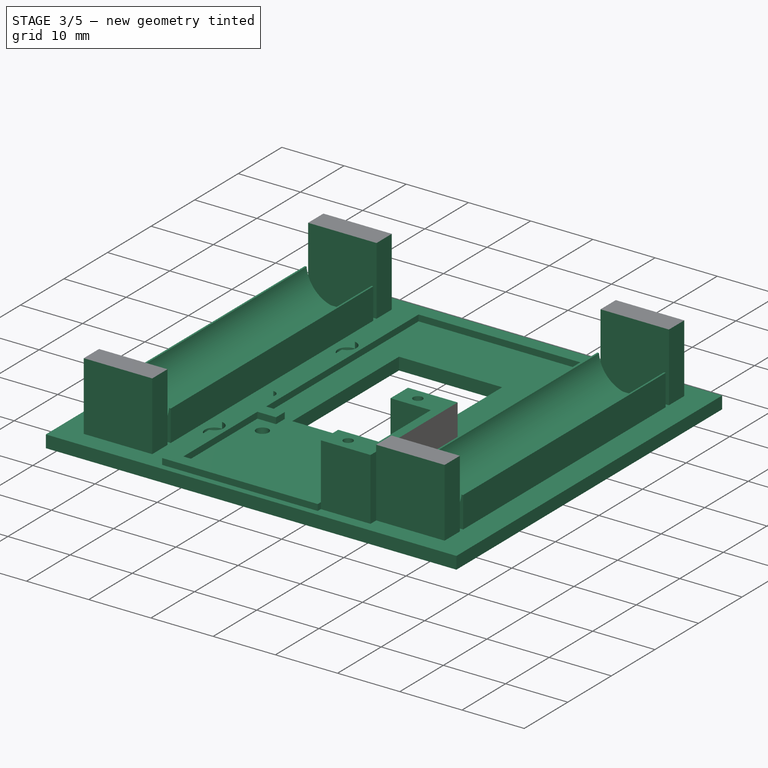
[diagram: stage 3 of 5 — iso view after this stage's code; geometry added in this stage tinted green]
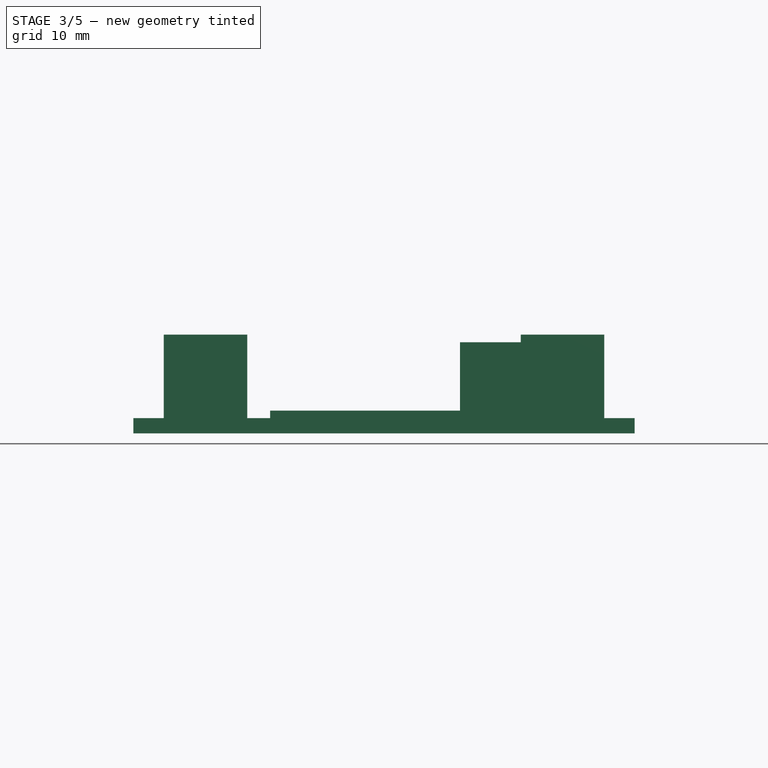
[diagram: stage 3 of 5 — front view after this stage's code; geometry added in this stage tinted green]
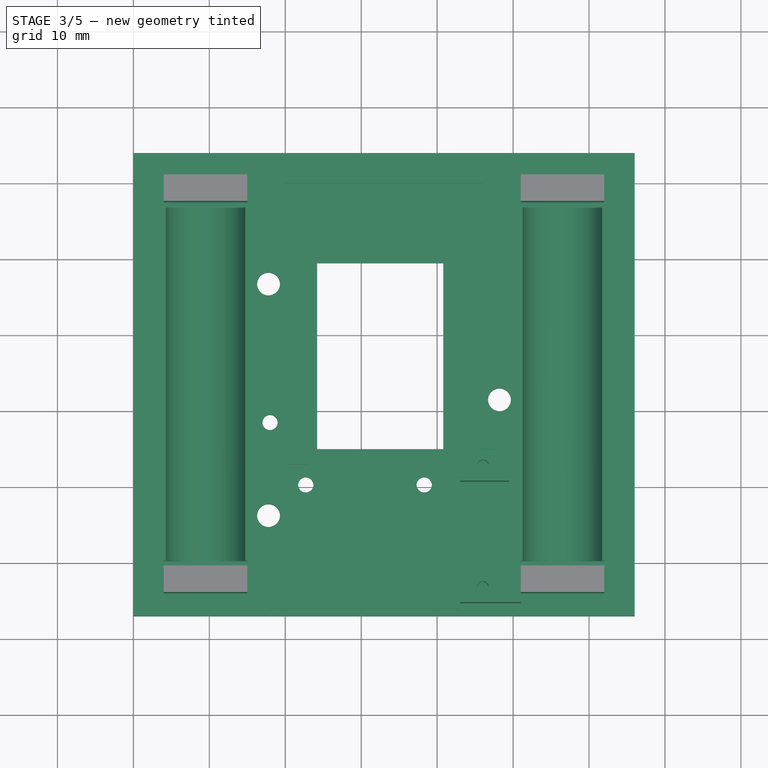
[diagram: stage 3 of 5 — top view after this stage's code; geometry added in this stage tinted green]
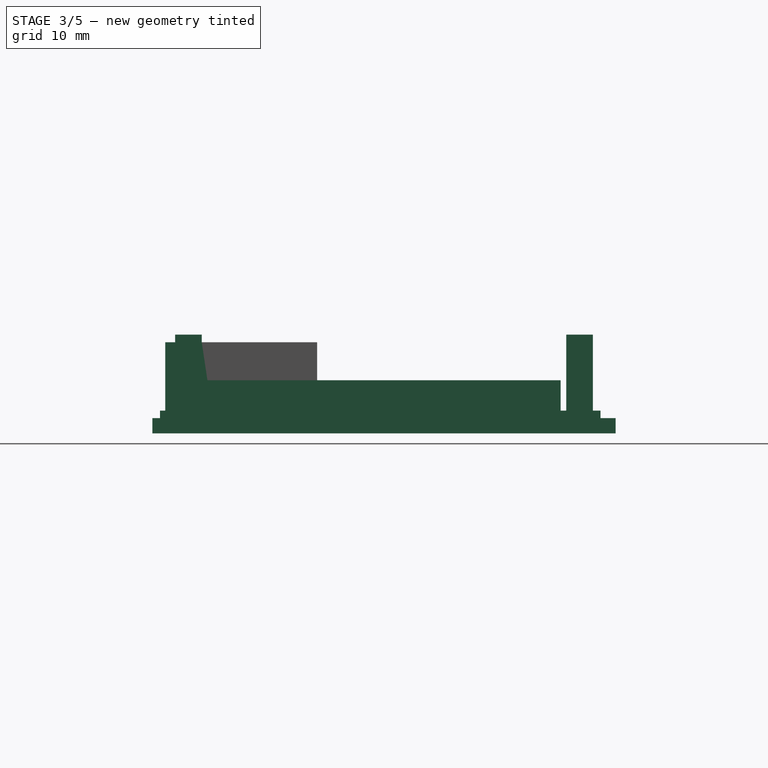
[diagram: stage 3 of 5 — right view after this stage's code; geometry added in this stage tinted green]
FEATURE [PartDesign::ShapeBinder] ShapeBinder002
  Support = -> [Pocket002]
  TraceSupport = true
FEATURE [Sketcher::SketchObject] Sketch017
  ExternalGeometry = -> [Pad012,ShapeBinder002,ShapeBinder001]
  FullyConstrained = true
  MapMode = 5
  Placement = pos=(0,-3.25,11) rot=(1,0,0;3.14159rad)
  Support = -> [Pad012]
  sketch-geometry (16):
    g0: LineSegment StartX=46 StartY=-7.25 StartZ=0 EndX=-20 EndY=-7.25 EndZ=0
    g1: LineSegment StartX=-20 StartY=-7.25 StartZ=0 EndX=-20 EndY=53.75 EndZ=0
    g2: LineSegment StartX=-20 StartY=53.75 StartZ=0 EndX=46 EndY=53.75 EndZ=0
    g3: LineSegment StartX=46 StartY=53.75 StartZ=0 EndX=46 EndY=-7.25 EndZ=0
    g4: LineSegment StartX=-16 StartY=50.75 StartZ=0 EndX=42 EndY=50.75 EndZ=0
    g5: LineSegment StartX=42 StartY=50.75 StartZ=0 EndX=42 EndY=-4.25 EndZ=0
    g6: LineSegment StartX=42 StartY=-4.25 StartZ=0 EndX=-16 EndY=-4.25 EndZ=0
    g7: LineSegment StartX=-16 StartY=-4.25 StartZ=0 EndX=-16 EndY=50.75 EndZ=0
    g8: LineSegment StartX=42.2 StartY=-4.45 StartZ=0 EndX=-16.2 EndY=-4.45 EndZ=0
    g9: LineSegment StartX=-16.2 StartY=-4.45 StartZ=0 EndX=-16.2 EndY=50.95 EndZ=0
    g10: LineSegment StartX=-16.2 StartY=50.95 StartZ=0 EndX=22.8 EndY=50.95 EndZ=0
    g11: LineSegment StartX=42.2 StartY=50.95 StartZ=0 EndX=42.2 EndY=-4.45 EndZ=0
    g12: LineSegment StartX=22.8 StartY=50.95 StartZ=0 EndX=22.8 EndY=52.25 EndZ=0
    g13: LineSegment StartX=22.8 StartY=52.25 StartZ=0 EndX=31.2 EndY=52.25 EndZ=0
    g14: LineSegment StartX=31.2 StartY=52.25 StartZ=0 EndX=31.2 EndY=50.95 EndZ=0
    g15: LineSegment StartX=31.2 StartY=50.95 StartZ=0 EndX=42.2 EndY=50.95 EndZ=0
  constraints (43):
    c: Coincident(g0,g1)
    c: Coincident(g1,g2)
    c: Coincident(g2,g3)
    c: Coincident(g3,g0)
    c: Horizontal(g0)
    c: Horizontal(g2)
    c: Vertical(g1)
    c: Vertical(g3)
    c: Coincident(g0,g-4)
    c: Coincident(g1,g-3)
    c: Coincident(g4,g5)
    c: Coincident(g5,g6)
    c: Coincident(g6,g7)
    c: Coincident(g7,g4)
    c: Horizontal(g4)
    c: Horizontal(g6)
    c: Vertical(g5)
    c: Vertical(g7)
    c: Coincident(g4,g-8)
    c: Coincident(g5,g-6)
    c: Coincident(g8,g9)
    c: Coincident(g9,g10)
    c: Coincident(g15,g11)
    c: Coincident(g11,g8)
    c: Horizontal(g8)
    c: Horizontal(g10)
    c: Vertical(g9)
    c: Vertical(g11)
    c: DistanceX(g9,g4) = 0.2
    c: DistanceY(g4,g9) = 0.2
    c: DistanceY(g8,g6) = 0.2
    c: DistanceX(g5,g8) = 0.2
    c: Coincident(g12,g13)
    c: Coincident(g13,g14)
    c: Horizontal(g13)
    c: Vertical(g12)
    c: Vertical(g14)
    c: Tangent(g10,g15)
    c: DistanceX(g12,g13) = 8.4
    c: DistanceX(g14,g11) = 11
    c: Coincident(g10,g12)
    c: Coincident(g14,g15)
    c: DistanceY(g14,g13) = 1.3
FEATURE [PartDesign::Pad] Pad013
  BaseFeature = -> Pad012
  Direction = (1,1,1)
  Length = 9.8
  Length2 = 100
  Placement = pos=(0,-3.25,2e-16) rot=(1,0,0;1.5708rad)
  Profile = -> Sketch017
  Type = 0
FEATURE [Sketcher::SketchObject] Sketch018
  ExternalGeometry = -> [ShapeBinder002,Pad013]
  FullyConstrained = true
  MapMode = 5
  Placement = pos=(0,-3.25,1.2) rot=(1,0,0;3.14159rad)
  Support = -> [Pad013]
  sketch-geometry (12):
    g0: LineSegment StartX=-2.2 StartY=52.95 StartZ=0 EndX=31.2 EndY=52.95 EndZ=0
    g1: LineSegment StartX=31.2 StartY=52.95 StartZ=0 EndX=31.2 EndY=50.95 EndZ=0
    g2: LineSegment StartX=-2.2 StartY=52.95 StartZ=0 EndX=-2.2 EndY=50.95 EndZ=0
    g3: LineSegment StartX=-2.2 StartY=50.95 StartZ=0 EndX=-16.2 EndY=50.95 EndZ=0
    g4: LineSegment StartX=-16.2 StartY=-4.45 StartZ=0 EndX=-16.2 EndY=50.95 EndZ=0
    g5: LineSegment StartX=-16.2 StartY=-4.45 StartZ=0 EndX=42.2 EndY=-4.45 EndZ=0
    g6: LineSegment StartX=42.2 StartY=-4.45 StartZ=0 EndX=42.2 EndY=50.95 EndZ=0
    g7: LineSegment StartX=31.2 StartY=50.95 StartZ=0 EndX=42.2 EndY=50.95 EndZ=0
    g8: LineSegment StartX=46 StartY=-7.25 StartZ=0 EndX=-20 EndY=-7.25 EndZ=0
    g9: LineSegment StartX=-20 StartY=-7.25 StartZ=0 EndX=-20 EndY=53.75 EndZ=0
    g10: LineSegment StartX=-20 StartY=53.75 StartZ=0 EndX=46 EndY=53.75 EndZ=0
    g11: LineSegment StartX=46 StartY=53.75 StartZ=0 EndX=46 EndY=-7.25 EndZ=0
  constraints (30):
    c: Horizontal(g0)
    c: Coincident(g1,g0)
    c: Vertical(g1)
    c: Coincident(g1,g-19)
    c: DistanceY(g-4,g0) = 0.2
    c: Coincident(g2,g0)
    c: PointOnObject(g2,g-20)
    c: Vertical(g2)
    c: DistanceX(g2,g-6) = 0.2
    c: Coincident(g3,g2)
    c: Coincident(g3,g-20)
    c: Coincident(g4,g-21)
    c: Coincident(g4,g3)
    c: Coincident(g5,g4)
    c: Coincident(g5,g-16)
    c: Coincident(g6,g5)
    c: PointOnObject(g6,g-19)
    c: Vertical(g6)
    c: Coincident(g7,g1)
    c: Coincident(g7,g6)
    c: Coincident(g8,g9)
    c: Coincident(g9,g10)
    c: Coincident(g10,g11)
    c: Coincident(g11,g8)
    c: Horizontal(g8)
    c: Horizontal(g10)
    c: Vertical(g9)
    c: Vertical(g11)
    c: Coincident(g8,g-23)
    c: Coincident(g9,g-22)
FEATURE [PartDesign::Pad] Pad014
  BaseFeature = -> Pad013
  Direction = (1,1,1)
  Length = 0.1
  Length2 = 100
  Placement = pos=(0,-3.25,2e-16) rot=(1,0,0;1.5708rad)
  Profile = -> Sketch018
  Type = 3
  UpToFace = -> ShapeBinder002 [Face11]
FEATURE [Sketcher::SketchObject] Sketch019
  ExternalGeometry = -> [Pad014]
  FullyConstrained = false
  MapMode = 5
  Placement = pos=(0,-3.25,11) rot=(1,0,0;3.14159rad)
  Support = -> [Pad014]
  expr: Constraints[2] = .Constraints.p1
  expr: Constraints[1] = .Constraints.p1
  sketch-geometry (8):
    g0: ArcOfCircle CenterX=-2.2 CenterY=40.5 CenterZ=0 NormalX=0 NormalY=0 NormalZ=1 AngleXU=0 Radius=4.5 StartAngle=4.04081 EndAngle=8.52556
    g1: ArcOfCircle CenterX=-2.2 CenterY=10 CenterZ=0 NormalX=0 NormalY=0 NormalZ=1 AngleXU=0 Radius=4.5 StartAngle=4.04081 EndAngle=8.52556
    g2: ArcOfCircle CenterX=28.2 CenterY=25.25 CenterZ=0 NormalX=0 NormalY=0 NormalZ=1 AngleXU=0 Radius=4.5 StartAngle=0.899218 EndAngle=5.38397
    g3: LineSegment StartX=-5 StartY=46.5 StartZ=0 EndX=-5 EndY=0.000716 EndZ=0
    g4: LineSegment StartX=31 StartY=4e-16 StartZ=0 EndX=31 EndY=46.5 EndZ=0
    g5: LineSegment StartX=-5 StartY=13.5228 StartZ=0 EndX=-5 EndY=6.47722 EndZ=0
    g6: LineSegment StartX=-5 StartY=44.0228 StartZ=0 EndX=-5 EndY=36.9772 EndZ=0
    g7: LineSegment StartX=31 StartY=28.7728 StartZ=0 EndX=31 EndY=21.7272 EndZ=0
  constraints (19):
    c: Diameter(g0) = 9  'p1'
    c: Diameter(g1) = 9
    c: Diameter(g2) = 9
    c: Coincident(g3,g-5)
    c: Vertical(g3)
    c: Coincident(g4,g-6)
    c: Coincident(g4,g-6)
    c: PointOnObject(g0,g3)
    c: PointOnObject(g0,g3)
    c: PointOnObject(g1,g3)
    c: PointOnObject(g1,g3)
    c: PointOnObject(g2,g4)
    c: PointOnObject(g2,g4)
    c: Coincident(g5,g1)
    c: Coincident(g5,g1)
    c: Coincident(g6,g0)
    c: Coincident(g6,g0)
    c: Coincident(g7,g2)
    c: Coincident(g7,g2)
FEATURE [PartDesign::Pad] Pad015
  BaseFeature = -> Pad014
  Direction = (1,1,1)
  Length = 5
  Length2 = 100
  Placement = pos=(0,-3.25,2e-16) rot=(1,0,0;1.5708rad)
  Profile = -> Sketch019
  Type = 0
FEATURE [Sketcher::SketchObject] Sketch020
  ExternalGeometry = -> [Pad015]
  FullyConstrained = true
  MapMode = 5
  Placement = pos=(0,-3.25,13) rot=(0,0,1;3.14159rad)
  Support = -> [Pad015]
  sketch-geometry (3):
    g0: Circle CenterX=2.2 CenterY=40.5 CenterZ=0 NormalX=0 NormalY=0 NormalZ=1 AngleXU=0 Radius=2.8
    g1: Circle CenterX=2.2 CenterY=10 CenterZ=0 NormalX=0 NormalY=0 NormalZ=1 AngleXU=0 Radius=2.8
    g2: Circle CenterX=-28.2 CenterY=25.25 CenterZ=0 NormalX=0 NormalY=0 NormalZ=1 AngleXU=0 Radius=2.8
  constraints (6):
    c: Coincident(g0,g-5)
    c: Coincident(g1,g-4)
    c: Coincident(g2,g-3)
    c: Diameter(g0) = 5.6
    c: Diameter(g2) = 5.6
    c: Diameter(g1) = 5.6
FEATURE [PartDesign::Pocket] Pocket003
  BaseFeature = -> Pad015
  Length = 5
  Length2 = 100
  Placement = pos=(0,-3.25,2e-16) rot=(1,0,0;1.5708rad)
  Profile = -> Sketch020
  Type = 0
FEATURE [Sketcher::SketchObject] Sketch021
  ExternalGeometry = -> [Pocket003]
  FullyConstrained = true
  MapMode = 5
  Placement = pos=(0,-3.25,13) rot=(0,0,1;3.14159rad)
  Support = -> [Pocket003]
  sketch-geometry (3):
    g0: Circle CenterX=-28.2 CenterY=25.25 CenterZ=0 NormalX=0 NormalY=0 NormalZ=1 AngleXU=0 Radius=1.5
    g1: Circle CenterX=2.2 CenterY=10 CenterZ=0 NormalX=0 NormalY=0 NormalZ=1 AngleXU=0 Radius=1.5
    g2: Circle CenterX=2.2 CenterY=40.5 CenterZ=0 NormalX=0 NormalY=0 NormalZ=1 AngleXU=0 Radius=1.5
  constraints (6):
    c: Coincident(g0,g-3)
    c: Coincident(g1,g-4)
    c: Coincident(g2,g-5)
    c: Diameter(g2) = 3
    c: Diameter(g1) = 3
    c: Diameter(g0) = 3
FEATURE [PartDesign::Pocket] Pocket004
  BaseFeature = -> Pocket003
  Length = 8
  Length2 = 100
  Placement = pos=(0,-3.25,2e-16) rot=(1,0,0;1.5708rad)
  Profile = -> Sketch021
  Type = 0
FEATURE [PartDesign::ShapeBinder] ShapeBinder003
  Support = -> [Pocket004]
  TraceSupport = true
FEATURE [Sketcher::SketchObject] Sketch022
  ExternalGeometry = -> [ShapeBinder003]
  FullyConstrained = true
  MapMode = 5
  Placement = pos=(0,0,1) rot=(0,0,1;0rad)
  Support = -> [Pocket002]
  sketch-geometry (3):
    g0: Circle CenterX=-2.2 CenterY=-43.75 CenterZ=0 NormalX=0 NormalY=0 NormalZ=1 AngleXU=0 Radius=1.5
    g1: Circle CenterX=28.2 CenterY=-28.5 CenterZ=0 NormalX=0 NormalY=0 NormalZ=1 AngleXU=0 Radius=1.5
    g2: Circle CenterX=-2.2 CenterY=-13.25 CenterZ=0 NormalX=0 NormalY=0 NormalZ=1 AngleXU=0 Radius=1.5
  constraints (8):
    c: Coincident(g0,g-3)
    c: Coincident(g1,g-5)
    c: Coincident(g2,g-4)
    c: Diameter(g-3) = 3
    c: Diameter(g-3) = 3
    c: Diameter(g0) = 3
    c: Diameter(g2) = 3
    c: Diameter(g1) = 3
FEATURE [PartDesign::Pocket] Pocket005
  BaseFeature = -> Pocket002
  Length = 5
  Length2 = 100
  Profile = -> Sketch022
  Type = 0
FEATURE [Sketcher::SketchObject] Sketch027
  ExternalGeometry = -> [Pocket005]
  FullyConstrained = true
  MapMode = 5
  Placement = pos=(0,0,10) rot=(0,0,1;0rad)
  Support = -> [Pocket005]
  sketch-geometry (4):
    g0: LineSegment StartX=31 StartY=-39.3 StartZ=0 EndX=29.5 EndY=-39.3 EndZ=0
    g1: LineSegment StartX=29.5 StartY=-39.3 StartZ=0 EndX=29.5 EndY=-51.3 EndZ=0
    g2: LineSegment StartX=29.5 StartY=-51.3 StartZ=0 EndX=31 EndY=-51.3 EndZ=0
    g3: LineSegment StartX=31 StartY=-51.3 StartZ=0 EndX=31 EndY=-39.3 EndZ=0
  constraints (11):
    c: Coincident(g0,g1)
    c: Coincident(g1,g2)
    c: Coincident(g2,g3)
    c: Coincident(g3,g0)
    c: Horizontal(g0)
    c: Horizontal(g2)
    c: Vertical(g1)
    c: Vertical(g3)
    c: Coincident(g0,g-3)
    c: PointOnObject(g1,g-4)
    c: DistanceX(g0,g0) = 1.5
FEATURE [PartDesign::Pad] Pad018
  BaseFeature = -> Pocket005
  Direction = (1,1,1)
  Length = 10
  Length2 = 100
  Profile = -> Sketch027
  Reversed = true
  Type = 0
FEATURE [Sketcher::SketchObject] Sketch028
  ExternalGeometry = -> [Pad018]
  FullyConstrained = false
  MapMode = 5
  Placement = pos=(0,0,1) rot=(0,0,1;0rad)
  Support = -> [Pad018]
  sketch-geometry (1):
    g0: Circle CenterX=-2 CenterY=-31.4891 CenterZ=0 NormalX=0 NormalY=0 NormalZ=1 AngleXU=0 Radius=1
  constraints (2):
    c: PointOnObject(g0,g-3)
    c: Diameter(g0) = 2
FEATURE [PartDesign::Pocket] Pocket008
  BaseFeature = -> Pad018
  Length = 5
  Length2 = 100
  Profile = -> Sketch028
  Type = 0
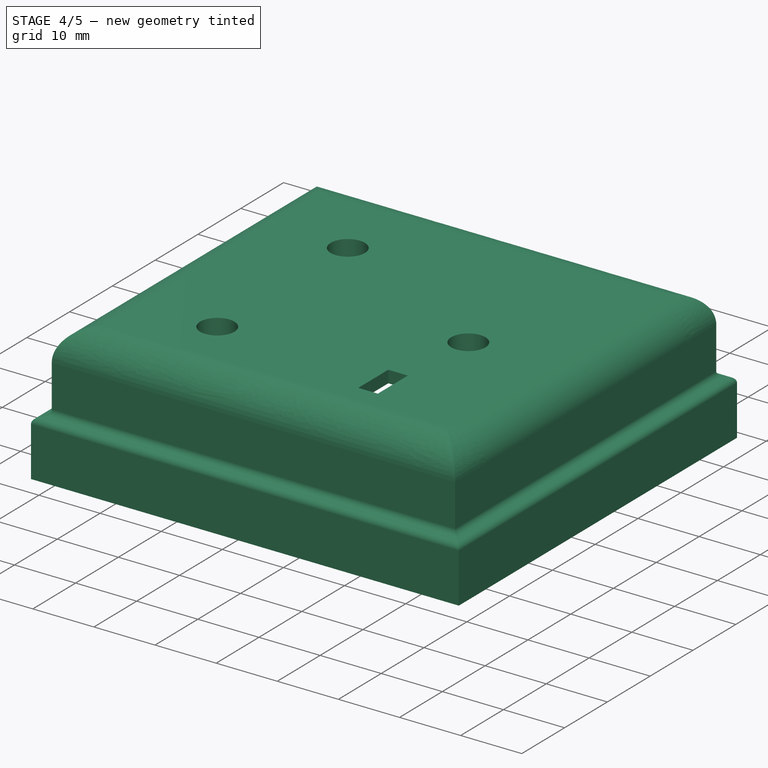
[diagram: stage 4 of 5 — iso view after this stage's code; geometry added in this stage tinted green]
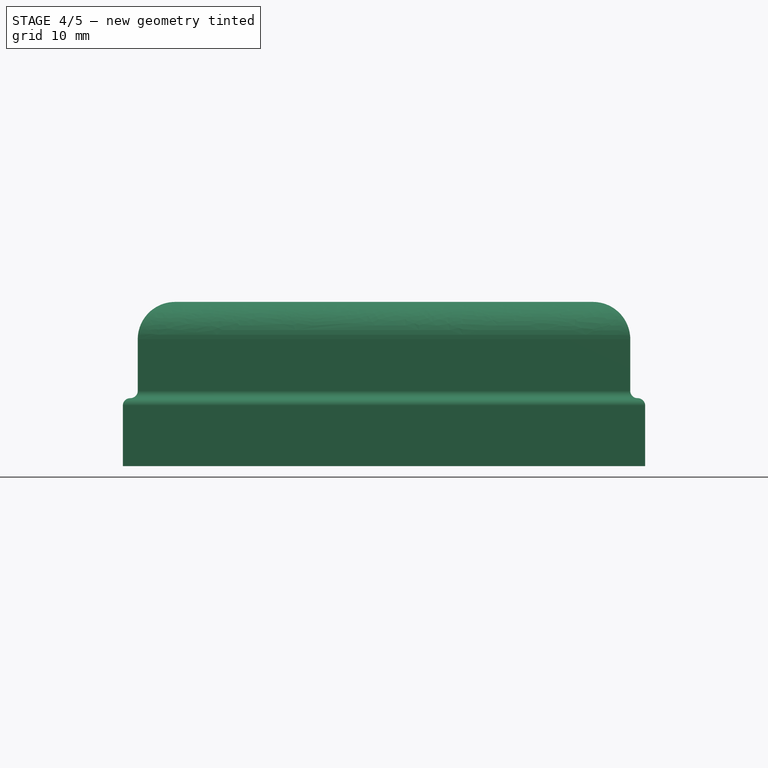
[diagram: stage 4 of 5 — front view after this stage's code; geometry added in this stage tinted green]
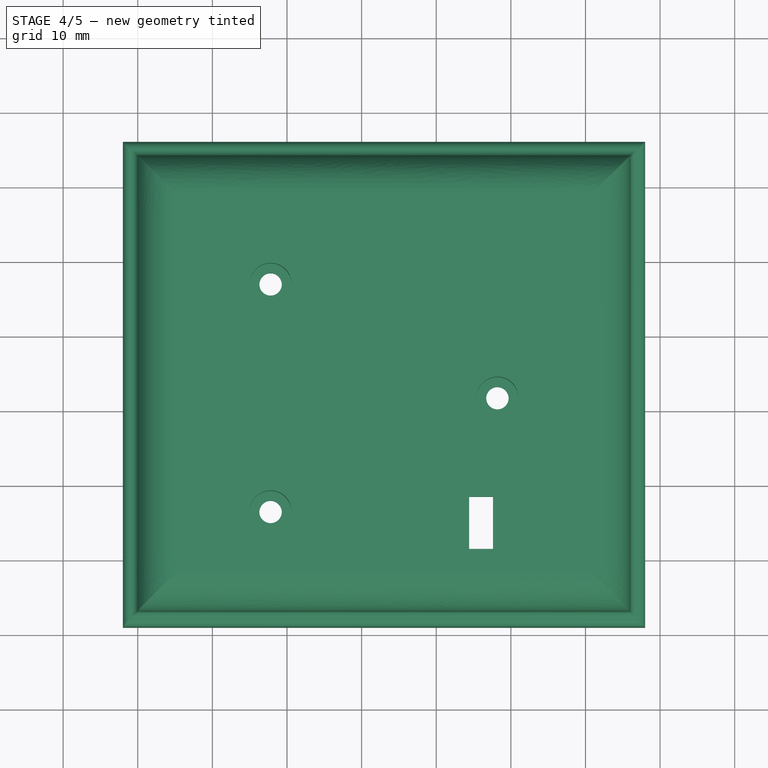
[diagram: stage 4 of 5 — top view after this stage's code; geometry added in this stage tinted green]
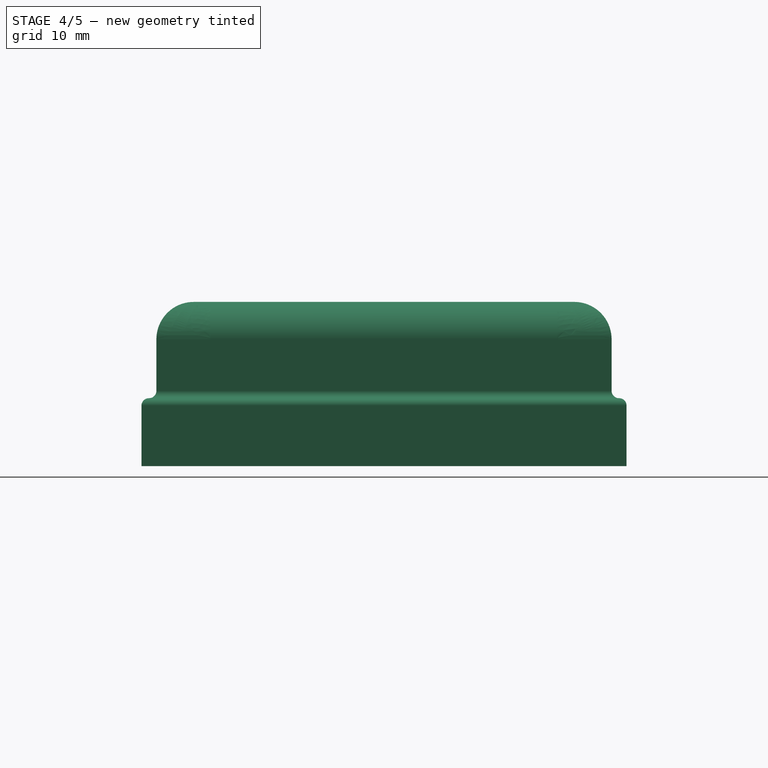
[diagram: stage 4 of 5 — right view after this stage's code; geometry added in this stage tinted green]
FEATURE [PartDesign::Body] Body002  label="podstawa"
  Group = -> [ShapeBinder004,DatumPlane003,Sketch023,Pad016,Sketch024,Sketch025,Pad017,Pocket006,ShapeBinder005,Sketch026,Pocket007,ShapeBinder006,Sketch029,Pocket009]
  Origin = -> Origin002
  Tip = -> Pocket009
FEATURE [Sketcher::SketchObject] Sketch030
  FullyConstrained = true
  MapMode = 5
  Placement = pos=(0,-3.25,13) rot=(0,0,1;3.14159rad)
  Support = -> [Pocket004]
FEATURE [PartDesign::ShapeBinder] ShapeBinder007
  Support = -> [Pocket008]
  TraceSupport = false
FEATURE [Sketcher::SketchObject] Sketch031
  ExternalGeometry = -> [ShapeBinder007]
  FullyConstrained = false
  MapMode = 5
  Placement = pos=(0,-3.25,11) rot=(1,0,0;3.14159rad)
  Support = -> [Pocket004]
  sketch-geometry (10):
    g0: LineSegment StartX=23.01 StartY=52.05 StartZ=0 EndX=29.01 EndY=52.05 EndZ=0
    g1: LineSegment StartX=29.01 StartY=52.05 StartZ=0 EndX=29.01 EndY=32.05 EndZ=0
    g2: LineSegment StartX=29.01 StartY=32.05 StartZ=0 EndX=23.01 EndY=32.05 EndZ=0
    g3: LineSegment StartX=23.01 StartY=32.05 StartZ=0 EndX=23.01 EndY=52.05 EndZ=0
    g4: LineSegment StartX=24.41 StartY=45.55 StartZ=0 EndX=27.61 EndY=45.55 EndZ=0
    g5: LineSegment StartX=27.61 StartY=45.55 StartZ=0 EndX=27.61 EndY=38.55 EndZ=0
    g6: LineSegment StartX=27.61 StartY=38.55 StartZ=0 EndX=24.41 EndY=38.55 EndZ=0
    g7: LineSegment StartX=24.41 StartY=38.55 StartZ=0 EndX=24.41 EndY=45.55 EndZ=0
    g8: LineSegment StartX=24.41 StartY=42.05 StartZ=0 EndX=27.61 EndY=42.05 EndZ=0
    g9: LineSegment StartX=26.01 StartY=45.55 StartZ=0 EndX=25.9514 EndY=38.55 EndZ=0
  constraints (28):
    c: Coincident(g0,g1)
    c: Coincident(g1,g2)
    c: Coincident(g2,g3)
    c: Coincident(g3,g0)
    c: Horizontal(g0)
    c: Horizontal(g2)
    c: Vertical(g1)
    c: Coincident(g0,g-4)
    c: Coincident(g2,g-3)
    c: DistanceX(g2,g1) = 6
    c: Coincident(g4,g5)
    c: Coincident(g5,g6)
    c: Coincident(g6,g7)
    c: Coincident(g7,g4)
    c: Horizontal(g4)
    c: Horizontal(g6)
    c: Vertical(g5)
    c: Vertical(g7)
    c: DistanceX(g4,g4) = 3.2
    c: DistanceY(g7,g7) = 7
    c: DistanceY(g3,g3) = 20
    c: PointOnObject(g8,g7)
    c: PointOnObject(g8,g5)
    c: Symmetric(g4,g6,g8)
    c: PointOnObject(g9,g6)
    c: Symmetric(g4,g4,g9)
    c: DistanceX(g0,g9) = 3
    c: DistanceY(g2,g8) = 10
FEATURE [PartDesign::Pocket] Pocket010
  BaseFeature = -> Pocket004
  Length = 5
  Length2 = 100
  Placement = pos=(0,-3.25,2e-16) rot=(1,0,0;1.5708rad)
  Profile = -> Sketch031
  Type = 0
FEATURE [PartDesign::Fillet] Fillet
  Base = -> Pocket010 [Edge162,Edge163,Edge164,Edge165,Edge159,Edge156,Edge157,Edge158]
  BaseFeature = -> Pocket010
  Placement = pos=(0,-3.25,2e-16) rot=(1,0,0;1.5708rad)
  Radius = 5
  SupportTransform = false
FEATURE [Sketcher::SketchObject] Sketch032
  FullyConstrained = true
  MapMode = 5
  Placement = pos=(0,-3.25,13) rot=(0,0,1;3.14159rad)
  Support = -> [Fillet]
FEATURE [Sketcher::SketchObject] Sketch033
  ExternalGeometry = -> [Fillet]
  FullyConstrained = true
  MapMode = 5
  Placement = pos=(0,-3.25,11) rot=(1,0,0;3.14159rad)
  Support = -> [Fillet]
  sketch-geometry (16):
    g0: LineSegment StartX=-16.2 StartY=50.95 StartZ=0 EndX=-16.2 EndY=-4.45 EndZ=0
    g1: LineSegment StartX=-16.2 StartY=-4.45 StartZ=0 EndX=42.2 EndY=-4.45 EndZ=0
    g2: LineSegment StartX=42.2 StartY=-4.45 StartZ=0 EndX=42.2 EndY=50.95 EndZ=0
    g3: LineSegment StartX=42.2 StartY=50.95 StartZ=0 EndX=31.2 EndY=50.95 EndZ=0
    g4: LineSegment StartX=31.2 StartY=50.95 StartZ=0 EndX=31.2 EndY=52.25 EndZ=0
    g5: LineSegment StartX=31.2 StartY=52.25 StartZ=0 EndX=22.8 EndY=52.25 EndZ=0
    g6: LineSegment StartX=22.8 StartY=52.25 StartZ=0 EndX=22.8 EndY=50.95 EndZ=0
    g7: LineSegment StartX=22.8 StartY=50.95 StartZ=0 EndX=-16.2 EndY=50.95 EndZ=0
    g8: LineSegment StartX=22.6 StartY=51.15 StartZ=0 EndX=-16.4 EndY=51.15 EndZ=0
    g9: LineSegment StartX=22.6 StartY=51.15 StartZ=0 EndX=22.6 EndY=52.45 EndZ=0
    g10: LineSegment StartX=22.6 StartY=52.45 StartZ=0 EndX=31.4 EndY=52.45 EndZ=0
    g11: LineSegment StartX=31.4 StartY=52.45 StartZ=0 EndX=31.4 EndY=51.15 EndZ=0
    g12: LineSegment StartX=31.4 StartY=51.15 StartZ=0 EndX=42.4 EndY=51.15 EndZ=0
    g13: LineSegment StartX=42.4 StartY=51.15 StartZ=0 EndX=42.4 EndY=-4.65 EndZ=0
    g14: LineSegment StartX=42.4 StartY=-4.65 StartZ=0 EndX=-16.4 EndY=-4.65 EndZ=0
    g15: LineSegment StartX=-16.4 StartY=-4.65 StartZ=0 EndX=-16.4 EndY=51.15 EndZ=0
  constraints (40):
    c: Coincident(g0,g-3)
    c: Coincident(g0,g-10)
    c: Coincident(g1,g0)
    c: Coincident(g1,g-9)
    c: Coincident(g2,g1)
    c: Coincident(g2,g-6)
    c: Coincident(g3,g2)
    c: Coincident(g3,g-5)
    c: Coincident(g4,g3)
    c: Coincident(g4,g-8)
    c: Coincident(g5,g4)
    c: Coincident(g5,g-7)
    c: Coincident(g6,g5)
    c: Coincident(g6,g-4)
    c: Coincident(g7,g6)
    c: Coincident(g7,g0)
    c: Horizontal(g8)
    c: DistanceX(g8,g6) = 0.2
    c: DistanceY(g6,g8) = 0.2
    c: Coincident(g9,g8)
    c: Vertical(g9)
    c: DistanceY(g5,g9) = 0.2
    c: Coincident(g10,g9)
    c: Horizontal(g10)
    c: DistanceX(g4,g10) = 0.2
    c: Coincident(g11,g10)
    c: Vertical(g11)
    c: DistanceY(g3,g11) = 0.2
    c: Coincident(g12,g11)
    c: Horizontal(g12)
    c: DistanceX(g2,g12) = 0.2
    c: Coincident(g13,g12)
    c: Vertical(g13)
    c: DistanceY(g13,g1) = 0.2
    c: Coincident(g14,g13)
    c: Horizontal(g14)
    c: DistanceX(g14,g0) = 0.2
    c: Coincident(g15,g14)
    c: Vertical(g15)
    c: Coincident(g8,g15)
FEATURE [PartDesign::Pocket] Pocket011
  BaseFeature = -> Fillet
  Length = 0
  Length2 = 100
  Placement = pos=(0,-3.25,2e-16) rot=(1,0,0;1.5708rad)
  Profile = -> Sketch033
  Type = 3
  UpToFace = -> Fillet [Face44]
FEATURE [Sketcher::SketchObject] Sketch034
  ExternalGeometry = -> [Pocket011]
  FullyConstrained = true
  MapMode = 5
  Placement = pos=(0,-3.25,-2e-16) rot=(1,0,0;3.14159rad)
  Support = -> [Pocket011]
  sketch-geometry (4):
    g0: LineSegment StartX=-2.2 StartY=52.95 StartZ=0 EndX=31.4 EndY=52.95 EndZ=0
    g1: LineSegment StartX=31.4 StartY=52.95 StartZ=0 EndX=31.4 EndY=51.15 EndZ=0
    g2: LineSegment StartX=31.4 StartY=51.15 StartZ=0 EndX=-2.2 EndY=51.15 EndZ=0
    g3: LineSegment StartX=-2.2 StartY=51.15 StartZ=0 EndX=-2.2 EndY=52.95 EndZ=0
  constraints (10):
    c: Coincident(g0,g1)
    c: Coincident(g1,g2)
    c: Coincident(g2,g3)
    c: Coincident(g3,g0)
    c: Horizontal(g0)
    c: Horizontal(g2)
    c: Vertical(g1)
    c: Vertical(g3)
    c: Coincident(g0,g-5)
    c: Coincident(g1,g-4)
FEATURE [PartDesign::Pocket] Pocket012
  BaseFeature = -> Pocket011
  Length = 1.4
  Length2 = 100
  Placement = pos=(0,-3.25,2e-16) rot=(1,0,0;1.5708rad)
  Profile = -> Sketch034
  Type = 0
FEATURE [Sketcher::SketchObject] Sketch035
  ExternalGeometry = -> [ShapeBinder001]
  FullyConstrained = true
  MapMode = 5
  Placement = pos=(0,-3.25,-2e-16) rot=(1,0,0;3.14159rad)
  Support = -> [Pocket012]
  sketch-geometry (8):
    g0: LineSegment StartX=46 StartY=53.75 StartZ=0 EndX=-20 EndY=53.75 EndZ=0
    g1: LineSegment StartX=-20 StartY=53.75 StartZ=0 EndX=-20 EndY=-7.25 EndZ=0
    g2: LineSegment StartX=-20 StartY=-7.25 StartZ=0 EndX=46 EndY=-7.25 EndZ=0
    g3: LineSegment StartX=46 StartY=-7.25 StartZ=0 EndX=46 EndY=53.75 EndZ=0
    g4: LineSegment StartX=-22 StartY=55.75 StartZ=0 EndX=48 EndY=55.75 EndZ=0
    g5: LineSegment StartX=48 StartY=55.75 StartZ=0 EndX=48 EndY=-9.25 EndZ=0
    g6: LineSegment StartX=48 StartY=-9.25 StartZ=0 EndX=-22 EndY=-9.25 EndZ=0
    g7: LineSegment StartX=-22 StartY=-9.25 StartZ=0 EndX=-22 EndY=55.75 EndZ=0
  constraints (22):
    c: Coincident(g0,g1)
    c: Coincident(g1,g2)
    c: Coincident(g2,g3)
    c: Coincident(g3,g0)
    c: Horizontal(g0)
    c: Horizontal(g2)
    c: Vertical(g1)
    c: Vertical(g3)
    c: Coincident(g0,g-3)
    c: Coincident(g1,g-4)
    c: Coincident(g4,g5)
    c: Coincident(g5,g6)
    c: Coincident(g6,g7)
    c: Coincident(g7,g4)
    c: Horizontal(g4)
    c: Horizontal(g6)
    c: Vertical(g5)
    c: Vertical(g7)
    c: DistanceX(g4,g0) = 2
    c: DistanceY(g0,g4) = 2
    c: DistanceX(g0,g4) = 2
    c: DistanceY(g5,g2) = 2
FEATURE [PartDesign::Pad] Pad019
  BaseFeature = -> Pocket012
  Direction = (1,1,1)
  Length = 9
  Length2 = 0.1
  Placement = pos=(0,-3.25,2e-16) rot=(1,0,0;1.5708rad)
  Profile = -> Sketch035
  Type = 4
FEATURE [PartDesign::Fillet] Fillet001
  Base = -> Pad019 [Edge70,Edge117,Edge73,Edge118]
  BaseFeature = -> Pad019
  Placement = pos=(0,-3.25,2e-16) rot=(1,0,0;1.5708rad)
  Radius = 1
  SupportTransform = false
FEATURE [PartDesign::Fillet] Fillet002
  Base = -> Fillet001 [Edge29,Edge30,Edge28,Edge27]
  BaseFeature = -> Fillet001
  Placement = pos=(0,-3.25,2e-16) rot=(1,0,0;1.5708rad)
  Radius = 0.99
  SupportTransform = false
FEATURE [Sketcher::SketchObject] Sketch036
  ExternalGeometry = -> [Fillet002]
  FullyConstrained = true
  MapMode = 5
  Placement = pos=(0,-3.25,-9) rot=(1,0,0;3.14159rad)
  Support = -> [Fillet002]
  sketch-geometry (4):
    g0: LineSegment StartX=-20.2 StartY=53.95 StartZ=0 EndX=46.2 EndY=53.95 EndZ=0
    g1: LineSegment StartX=46.2 StartY=53.95 StartZ=0 EndX=46.2 EndY=-7.45 EndZ=0
    g2: LineSegment StartX=46.2 StartY=-7.45 StartZ=0 EndX=-20.2 EndY=-7.45 EndZ=0
    g3: LineSegment StartX=-20.2 StartY=-7.45 StartZ=0 EndX=-20.2 EndY=53.95 EndZ=0
  constraints (12):
    c: Coincident(g0,g1)
    c: Coincident(g1,g2)
    c: Coincident(g2,g3)
    c: Coincident(g3,g0)
    c: Horizontal(g0)
    c: Horizontal(g2)
    c: Vertical(g1)
    c: Vertical(g3)
    c: DistanceX(g-4,g1) = 0.2
    c: DistanceX(g0,g-3) = 0.2
    c: DistanceY(g-3,g0) = 0.2
    c: DistanceY(g1,g-4) = 0.2
FEATURE [PartDesign::Pocket] Pocket013
  BaseFeature = -> Fillet002
  Length = 9
  Length2 = 100
  Placement = pos=(0,-3.25,2e-16) rot=(1,0,0;1.5708rad)
  Profile = -> Sketch036
  Type = 0
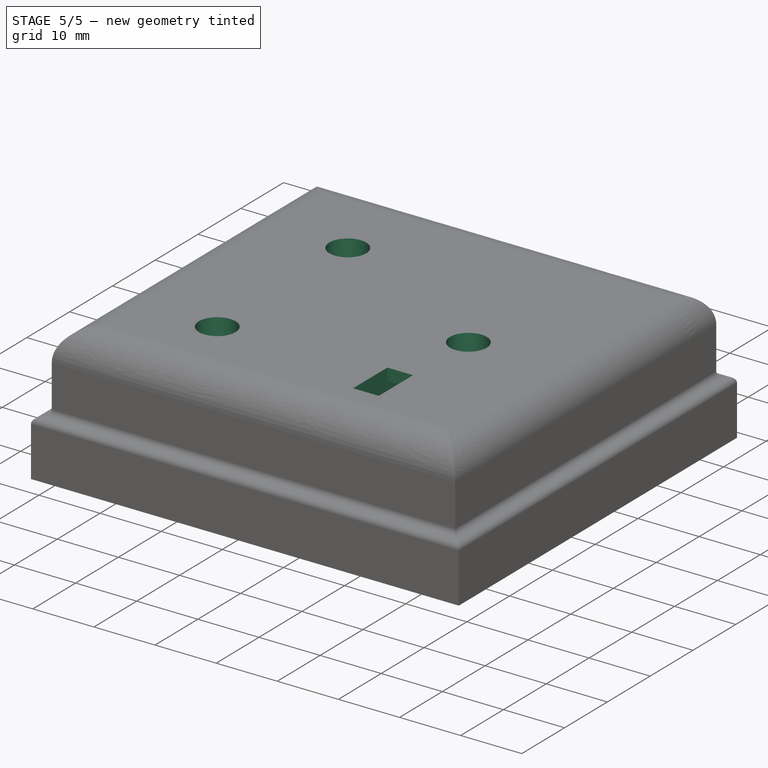
[diagram: stage 5 of 5 — iso view after this stage's code; geometry added in this stage tinted green]
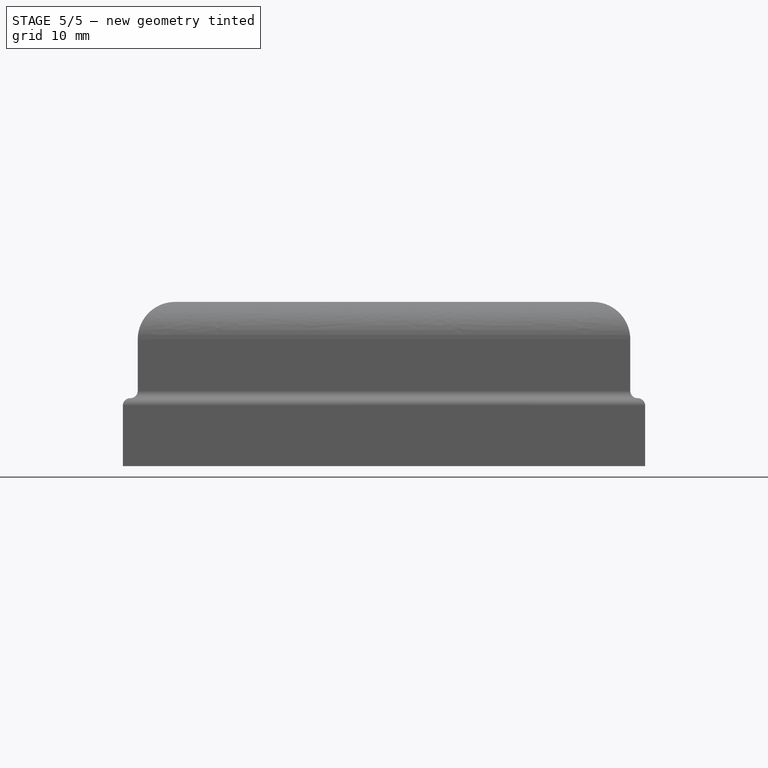
[diagram: stage 5 of 5 — front view after this stage's code; geometry added in this stage tinted green]
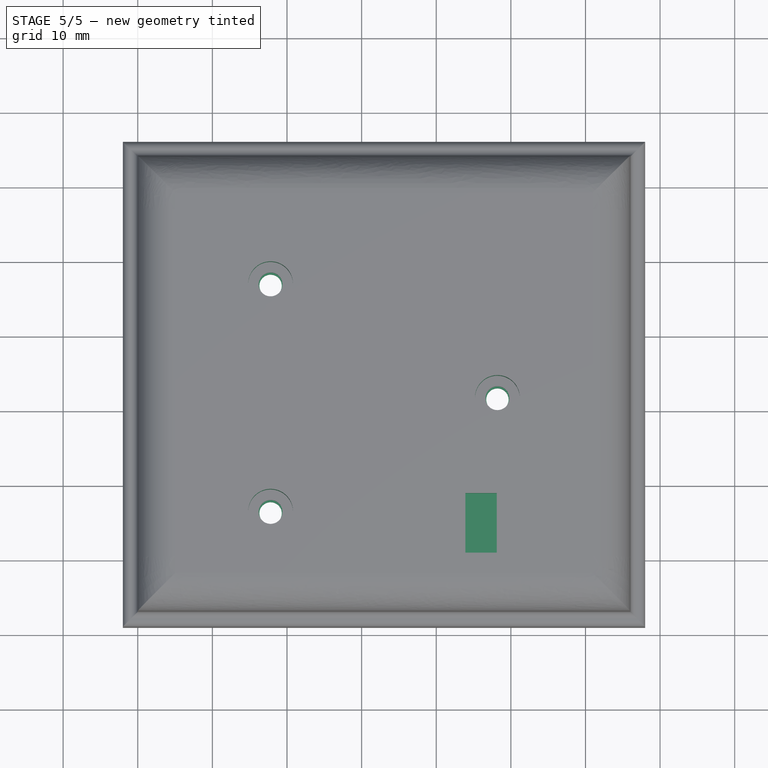
[diagram: stage 5 of 5 — top view after this stage's code; geometry added in this stage tinted green]
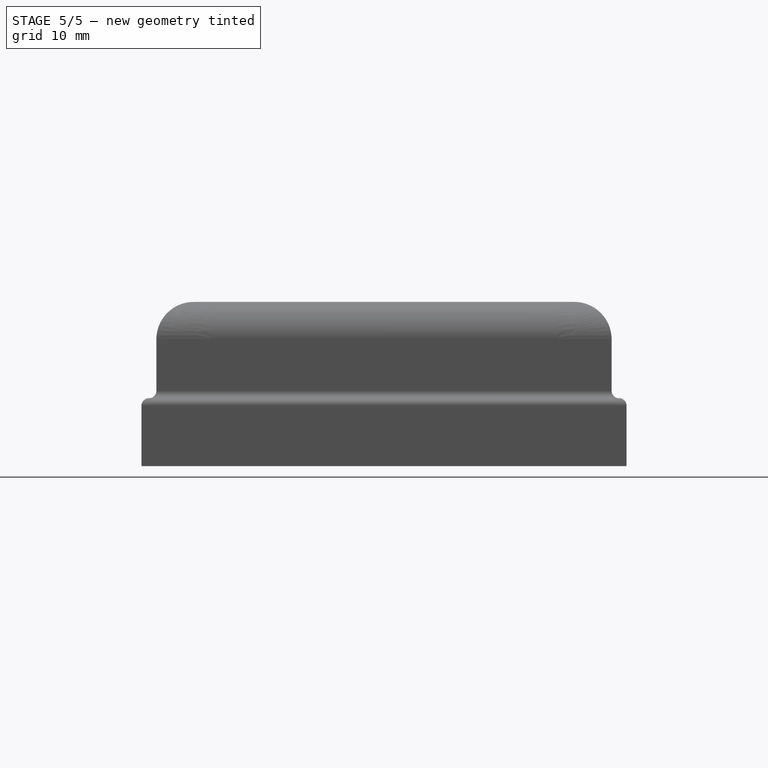
[diagram: stage 5 of 5 — right view after this stage's code; geometry added in this stage tinted green]
FEATURE [PartDesign::ShapeBinder] ShapeBinder004
  Support = -> [Pocket005]
  TraceSupport = true
FEATURE [PartDesign::Plane] DatumPlane003
  Length = 86.2604
  MapMode = 5
  Placement = pos=(0,0,-2) rot=(1,0,0;3.14159rad)
  ResizeMode = 0
  Support = -> [ShapeBinder004]
  Width = 97.2604
FEATURE [Sketcher::SketchObject] Sketch023
  ExternalGeometry = -> [ShapeBinder004]
  FullyConstrained = false
  MapMode = 5
  Placement = pos=(0,0,-2) rot=(1,0,0;3.14159rad)
  Support = -> [DatumPlane003]
  expr: Constraints[20] = .Constraints.d
  expr: Constraints[30] = .Constraints.vo
  expr: Constraints[21] = .Constraints.d
  expr: Constraints[27] = .Constraints.ho
  expr: Constraints[22] = .Constraints.d
  expr: Constraints[25] = .Constraints.vo
  expr: Constraints[26] = .Constraints.ho
  expr: Constraints[29] = .Constraints.ho
  expr: Constraints[28] = .Constraints.vo
  expr: .Constraints.d = Spreadsheet.magnet
  sketch-geometry (13):
    g0: Circle CenterX=-2.2 CenterY=43.75 CenterZ=0 NormalX=0 NormalY=0 NormalZ=1 AngleXU=0 Radius=1.5
    g1: Circle CenterX=2.7 CenterY=39.7 CenterZ=0 NormalX=0 NormalY=0 NormalZ=1 AngleXU=0 Radius=1
    g2: Circle CenterX=18.3 CenterY=39.7 CenterZ=0 NormalX=0 NormalY=0 NormalZ=1 AngleXU=0 Radius=1
    g3: Circle CenterX=28.2 CenterY=28.5 CenterZ=0 NormalX=0 NormalY=0 NormalZ=1 AngleXU=0 Radius=1.5
    g4: Circle CenterX=-2.2 CenterY=13.25 CenterZ=0 NormalX=0 NormalY=0 NormalZ=1 AngleXU=0 Radius=1.5
    g5: LineSegment StartX=-20 StartY=57 StartZ=0 EndX=46 EndY=57 EndZ=0
    g6: LineSegment StartX=46 StartY=57 StartZ=0 EndX=46 EndY=-4 EndZ=0
    g7: LineSegment StartX=46 StartY=-4 StartZ=0 EndX=-20 EndY=-4 EndZ=0
    g8: LineSegment StartX=-20 StartY=-4 StartZ=0 EndX=-20 EndY=57 EndZ=0
    g9: Circle CenterX=-12 CenterY=49 CenterZ=0 NormalX=0 NormalY=0 NormalZ=1 AngleXU=0 Radius=5.25
    g10: Circle CenterX=38 CenterY=49 CenterZ=0 NormalX=0 NormalY=0 NormalZ=1 AngleXU=0 Radius=5.25
    g11: Circle CenterX=-12 CenterY=4 CenterZ=0 NormalX=0 NormalY=0 NormalZ=1 AngleXU=0 Radius=5.25
    g12: Circle CenterX=38 CenterY=4 CenterZ=0 NormalX=0 NormalY=0 NormalZ=1 AngleXU=0 Radius=5.25
  constraints (31):
    c: Coincident(g0,g-5)
    c: Coincident(g2,g-6)
    c: Coincident(g3,g-7)
    c: Coincident(g4,g-8)
    c: Coincident(g5,g6)
    c: Coincident(g6,g7)
    c: Coincident(g7,g8)
    c: Coincident(g8,g5)
    c: Horizontal(g5)
    c: Horizontal(g7)
    c: Vertical(g6)
    c: Vertical(g8)
    c: Coincident(g5,g-3)
    c: Coincident(g6,g-4)
    c: Diameter(g0) = 3
    c: Diameter(g1) = 2
    c: Diameter(g2) = 2
    c: Diameter(g3) = 3
    c: Diameter(g4) = 3
    c: Diameter(g9) = 10.5  'd'
    c: Diameter(g10) = 10.5
    c: Diameter(g12) = 10.5
    c: Diameter(g11) = 10.5
    c: DistanceX(g5,g9) = 8  'ho'
    c: DistanceY(g9,g5) = 8  'vo'
    c: DistanceY(g10,g5) = 8
    c: DistanceX(g10,g5) = 8
    c: DistanceY(g6,g12) = 8
    c: DistanceX(g12,g6) = 8
    c: DistanceX(g7,g11) = 8
    c: DistanceY(g7,g11) = 8
FEATURE [PartDesign::Pad] Pad016
  Direction = (1,1,1)
  Length = 2
  Length2 = 100
  Placement = pos=(0,0,-2) rot=(1,0,0;3.14159rad)
  Profile = -> Sketch023
  Type = 0
FEATURE [Sketcher::SketchObject] Sketch024
  ExternalGeometry = -> [Pad016]
  FullyConstrained = true
  MapMode = 5
  Placement = pos=(0,0,-4) rot=(1,0,0;3.14159rad)
  Support = -> [Pad016]
  expr: Constraints[2] = Spreadsheet.magnet
  expr: Constraints[3] = Spreadsheet.magnet
  expr: Constraints[5] = Spreadsheet.magnet
  expr: Constraints[7] = Spreadsheet.magnet
  sketch-geometry (6):
    g0: Circle CenterX=-12 CenterY=4 CenterZ=0 NormalX=0 NormalY=0 NormalZ=1 AngleXU=0 Radius=5.25
    g1: Circle CenterX=-12 CenterY=49 CenterZ=0 NormalX=0 NormalY=0 NormalZ=1 AngleXU=0 Radius=5.25
    g2: Circle CenterX=38 CenterY=49 CenterZ=0 NormalX=0 NormalY=0 NormalZ=1 AngleXU=0 Radius=5.25
    g3: Circle CenterX=38 CenterY=4 CenterZ=0 NormalX=0 NormalY=0 NormalZ=1 AngleXU=0 Radius=5.25
    g4: Circle CenterX=2.7 CenterY=39.7 CenterZ=0 NormalX=0 NormalY=0 NormalZ=1 AngleXU=0 Radius=1
    g5: Circle CenterX=18.3 CenterY=39.7 CenterZ=0 NormalX=0 NormalY=0 NormalZ=1 AngleXU=0 Radius=1
  constraints (12):
    c: Coincident(g0,g-7)
    c: Coincident(g1,g-6)
    c: Diameter(g1) = 10.5
    c: Diameter(g0) = 10.5
    c: Coincident(g2,g-5)
    c: Diameter(g2) = 10.5
    c: Coincident(g3,g-8)
    c: Diameter(g3) = 10.5
    c: Coincident(g4,g-9)
    c: Coincident(g5,g-10)
    c: Diameter(g4) = 2
    c: Diameter(g5) = 2
FEATURE [Sketcher::SketchObject] Sketch025
  ExternalGeometry = -> [Pad016]
  FullyConstrained = false
  MapMode = 5
  Placement = pos=(0,0,-4) rot=(1,0,0;3.14159rad)
  Support = -> [Pad016]
  sketch-geometry (25):
    g0: LineSegment StartX=-20 StartY=57 StartZ=0 EndX=46 EndY=57 EndZ=0
    g1: LineSegment StartX=46 StartY=57 StartZ=0 EndX=46 EndY=-4 EndZ=0
    g2: LineSegment StartX=46 StartY=-4 StartZ=0 EndX=-20 EndY=-4 EndZ=0
    g3: LineSegment StartX=-20 StartY=-4 StartZ=0 EndX=-20 EndY=57 EndZ=0
    g4: LineSegment StartX=-2.83818 StartY=47.0961 StartZ=0 EndX=-5.41685 EndY=44.8703 EndZ=0
    g5: LineSegment StartX=-5.41685 StartY=44.8703 StartZ=0 EndX=-4.77868 EndY=41.5243 EndZ=0
    g6: LineSegment StartX=-4.77868 StartY=41.5243 StartZ=0 EndX=-1.56182 EndY=40.4039 EndZ=0
    g7: LineSegment StartX=-1.56182 StartY=40.4039 StartZ=0 EndX=1.01685 EndY=42.6297 EndZ=0
    g8: LineSegment StartX=1.01685 StartY=42.6297 StartZ=0 EndX=0.378677 EndY=45.9757 EndZ=0
    g9: LineSegment StartX=0.378677 StartY=45.9757 StartZ=0 EndX=-2.83818 EndY=47.0961 EndZ=0
    g10: Circle CenterX=-2.2 CenterY=43.75 CenterZ=0 NormalX=0 NormalY=0 NormalZ=1 AngleXU=0 Radius=3.40637
    g11: LineSegment StartX=29.5003 StartY=25.3516 StartZ=0 EndX=31.5768 EndY=28.0519 EndZ=0
    g12: LineSegment StartX=31.5768 StartY=28.0519 StartZ=0 EndX=30.2765 EndY=31.2003 EndZ=0
    g13: LineSegment StartX=30.2765 StartY=31.2003 StartZ=0 EndX=26.8997 EndY=31.6484 EndZ=0
    g14: LineSegment StartX=26.8997 StartY=31.6484 StartZ=0 EndX=24.8232 EndY=28.9481 EndZ=0
    g15: LineSegment StartX=24.8232 StartY=28.9481 StartZ=0 EndX=26.1235 EndY=25.7997 EndZ=0
    g16: LineSegment StartX=26.1235 StartY=25.7997 StartZ=0 EndX=29.5003 EndY=25.3516 EndZ=0
    g17: Circle CenterX=28.2 CenterY=28.5 CenterZ=0 NormalX=0 NormalY=0 NormalZ=1 AngleXU=0 Radius=3.40637
    g18: LineSegment StartX=1.08743 StartY=14.1423 StartZ=0 EndX=-1.32901 EndY=16.5431 EndZ=0
    g19: LineSegment StartX=-1.32901 StartY=16.5431 StartZ=0 EndX=-4.61644 EndY=15.6509 EndZ=0
    g20: LineSegment StartX=-4.61644 StartY=15.6509 StartZ=0 EndX=-5.48743 EndY=12.3577 EndZ=0
    g21: LineSegment StartX=-5.48743 StartY=12.3577 StartZ=0 EndX=-3.07099 EndY=9.95687 EndZ=0
    g22: LineSegment StartX=-3.07099 StartY=9.95687 StartZ=0 EndX=0.216442 EndY=10.8491 EndZ=0
    g23: LineSegment StartX=0.216442 StartY=10.8491 StartZ=0 EndX=1.08743 EndY=14.1423 EndZ=0
    g24: Circle CenterX=-2.2 CenterY=13.25 CenterZ=0 NormalX=0 NormalY=0 NormalZ=1 AngleXU=0 Radius=3.40637
  constraints (55):
    c: Coincident(g0,g1)
    c: Coincident(g1,g2)
    c: Coincident(g2,g3)
    c: Coincident(g3,g0)
    c: Horizontal(g0)
    c: Horizontal(g2)
    c: Vertical(g1)
    c: Vertical(g3)
    c: Coincident(g0,g-3)
    c: Coincident(g1,g-4)
    c: Coincident(g4,g5)
    c: Coincident(g5,g6)
    c: Coincident(g6,g7)
    c: Coincident(g7,g8)
    c: Coincident(g8,g9)
    c: Coincident(g9,g4)
    c: Equal(g4, g5-g9) x5
    c: PointOnObject(g4,g10)
    c: PointOnObject(g5,g10)
    c: PointOnObject(g6,g10)
    c: PointOnObject(g7,g10)
    c: PointOnObject(g8,g10)
    c: PointOnObject(g9,g10)
    c: Coincident(g10,g-5)
    c: Distance(g8,g6) = 5.9
    c: Coincident(g11,g12)
    c: Coincident(g12,g13)
    c: Coincident(g13,g14)
    c: Coincident(g14,g15)
    c: Coincident(g15,g16)
    c: Coincident(g16,g11)
    c: Equal(g11, g12-g16) x5
    c: PointOnObject(g11,g17)
    c: PointOnObject(g12,g17)
    c: PointOnObject(g13,g17)
    c: PointOnObject(g14,g17)
    c: PointOnObject(g15,g17)
    c: PointOnObject(g16,g17)
    c: Coincident(g17,g-6)
    c: Distance(g12,g11) = 5.9
    c: Coincident(g18,g19)
    c: Coincident(g19,g20)
    c: Coincident(g20,g21)
    c: Coincident(g21,g22)
    c: Coincident(g22,g23)
    c: Coincident(g23,g18)
    c: Equal(g18, g19-g23) x5
    c: PointOnObject(g18,g24)
    c: PointOnObject(g19,g24)
    c: PointOnObject(g20,g24)
    c: PointOnObject(g21,g24)
    c: PointOnObject(g22,g24)
    c: PointOnObject(g23,g24)
    c: Coincident(g24,g-7)
    c: Distance(g18,g19) = 5.9
FEATURE [PartDesign::Pad] Pad017
  BaseFeature = -> Pad016
  Direction = (1,1,1)
  Length = 5
  Length2 = 100
  Placement = pos=(0,0,-2) rot=(1,0,0;3.14159rad)
  Profile = -> Sketch025
  Type = 0
FEATURE [PartDesign::Pocket] Pocket006
  BaseFeature = -> Pad017
  Length = 3
  Length2 = 100
  Placement = pos=(0,0,-2) rot=(1,0,0;3.14159rad)
  Profile = -> Sketch024
  Reversed = true
  Type = 0
FEATURE [PartDesign::ShapeBinder] ShapeBinder005
  Support = -> [Pocket005]
  TraceSupport = false
FEATURE [Sketcher::SketchObject] Sketch026
  ExternalGeometry = -> [ShapeBinder005]
  FullyConstrained = true
  MapMode = 5
  Placement = pos=(0,0,-2) rot=(0,0,1;0rad)
  Support = -> [Pocket006]
  sketch-geometry (4):
    g0: LineSegment StartX=4.2 StartY=-10.5 StartZ=0 EndX=20.8 EndY=-10.5 EndZ=0
    g1: LineSegment StartX=20.8 StartY=-10.5 StartZ=0 EndX=20.8 EndY=-35 EndZ=0
    g2: LineSegment StartX=20.8 StartY=-35 StartZ=0 EndX=4.2 EndY=-35 EndZ=0
    g3: LineSegment StartX=4.2 StartY=-35 StartZ=0 EndX=4.2 EndY=-10.5 EndZ=0
  constraints (10):
    c: Coincident(g0,g1)
    c: Coincident(g1,g2)
    c: Coincident(g2,g3)
    c: Coincident(g3,g0)
    c: Horizontal(g0)
    c: Horizontal(g2)
    c: Vertical(g1)
    c: Vertical(g3)
    c: Coincident(g0,g-3)
    c: Coincident(g1,g-4)
FEATURE [PartDesign::Pocket] Pocket007
  BaseFeature = -> Pocket006
  Length = 5
  Length2 = 100
  Placement = pos=(0,0,-2) rot=(1,0,0;3.14159rad)
  Profile = -> Sketch026
  Type = 0
FEATURE [PartDesign::Body] Body  label="elektronika"
  Group = -> [Sketch,Sketch001,Sketch002,Pad,Pad001,DatumPlane,Sketch003,Pad002,Sketch004,Pad003,Sketch005,Pocket,Sketch006,Pad004,Sketch007,Pad005,Sketch008,Pocket001,Sketch009,Pad006,Sketch010,Pocket002,ShapeBinder003,Sketch022,Pocket005,Sketch027,Pad018,Sketch028,Pocket008]
  Origin = -> Origin
  Tip = -> Pocket008
FEATURE [PartDesign::ShapeBinder] ShapeBinder006
  Support = -> [Pocket008]
  TraceSupport = false
FEATURE [Sketcher::SketchObject] Sketch029
  ExternalGeometry = -> [ShapeBinder006]
  FullyConstrained = true
  MapMode = 5
  Placement = pos=(0,0,-2) rot=(0,0,1;0rad)
  Support = -> [Pocket007]
  sketch-geometry (1):
    g0: Circle CenterX=-2 CenterY=-31.4891 CenterZ=0 NormalX=0 NormalY=0 NormalZ=1 AngleXU=0 Radius=1
  constraints (2):
    c: Coincident(g0,g-3)
    c: Diameter(g0) = 2
FEATURE [PartDesign::Pocket] Pocket009
  BaseFeature = -> Pocket007
  Length = 5
  Length2 = 100
  Placement = pos=(0,0,-2) rot=(1,0,0;3.14159rad)
  Profile = -> Sketch029
  Type = 0
FEATURE [Sketcher::SketchObject] Sketch037
  ExternalGeometry = -> [Pocket013]
  FullyConstrained = true
  MapMode = 5
  Placement = pos=(0,-3.25,11) rot=(1,0,0;3.14159rad)
  Support = -> [Pocket013]
  sketch-geometry (4):
    g0: LineSegment StartX=23.91 StartY=46.05 StartZ=0 EndX=28.11 EndY=46.05 EndZ=0
    g1: LineSegment StartX=28.11 StartY=46.05 StartZ=0 EndX=28.11 EndY=38.05 EndZ=0
    g2: LineSegment StartX=28.11 StartY=38.05 StartZ=0 EndX=23.91 EndY=38.05 EndZ=0
    g3: LineSegment StartX=23.91 StartY=38.05 StartZ=0 EndX=23.91 EndY=46.05 EndZ=0
  constraints (12):
    c: Coincident(g0,g1)
    c: Coincident(g1,g2)
    c: Coincident(g2,g3)
    c: Coincident(g3,g0)
    c: Horizontal(g0)
    c: Horizontal(g2)
    c: Vertical(g1)
    c: Vertical(g3)
    c: DistanceX(g0,g-3) = 0.5
    c: DistanceX(g-4,g1) = 0.5
    c: DistanceY(g-3,g0) = 0.5
    c: DistanceY(g2,g-4) = 0.5
FEATURE [PartDesign::Pocket] Pocket014
  BaseFeature = -> Pocket013
  Length = 5
  Length2 = 100
  Placement = pos=(0,-3.25,2e-16) rot=(1,0,0;1.5708rad)
  Profile = -> Sketch037
  Type = 0
FEATURE [Sketcher::SketchObject] Sketch038
  ExternalGeometry = -> [Pocket014]
  FullyConstrained = true
  MapMode = 5
  Placement = pos=(0,-3.25,13) rot=(0,0,1;3.14159rad)
  Support = -> [Pocket014]
  sketch-geometry (3):
    g0: Circle CenterX=2.2 CenterY=40.5 CenterZ=0 NormalX=0 NormalY=0 NormalZ=1 AngleXU=0 Radius=3
    g1: Circle CenterX=-28.2 CenterY=25.25 CenterZ=0 NormalX=0 NormalY=0 NormalZ=1 AngleXU=0 Radius=3
    g2: Circle CenterX=2.2 CenterY=10 CenterZ=0 NormalX=0 NormalY=0 NormalZ=1 AngleXU=0 Radius=3
  constraints (7):
    c: Diameter(g-3) = 5.6
    c: Coincident(g0,g-3)
    c: Diameter(g0) = 6
    c: Coincident(g1,g-4)
    c: Diameter(g1) = 6
    c: Coincident(g2,g-5)
    c: Diameter(g2) = 6
FEATURE [PartDesign::Pocket] Pocket015
  BaseFeature = -> Pocket014
  Length = 5
  Length2 = 100
  Placement = pos=(0,-3.25,2e-16) rot=(1,0,0;1.5708rad)
  Profile = -> Sketch038
  Type = 0
FEATURE [Sketcher::SketchObject] Sketch039
  ExternalGeometry = -> [Pocket015]
  FullyConstrained = true
  MapMode = 5
  Placement = pos=(-1.7e-15,-3.25,8) rot=(0,0,1;3.14159rad)
  Support = -> [Pocket015]
  sketch-geometry (3):
    g0: Circle CenterX=2.2 CenterY=40.5 CenterZ=0 NormalX=0 NormalY=0 NormalZ=1 AngleXU=0 Radius=1.6
    g1: Circle CenterX=-28.2 CenterY=25.25 CenterZ=0 NormalX=0 NormalY=0 NormalZ=1 AngleXU=0 Radius=1.6
    g2: Circle CenterX=2.2 CenterY=10 CenterZ=0 NormalX=0 NormalY=0 NormalZ=1 AngleXU=0 Radius=1.6
  constraints (7):
    c: Diameter(g-3) = 3
    c: Coincident(g0,g-3)
    c: Diameter(g0) = 3.2
    c: Coincident(g1,g-4)
    c: Diameter(g1) = 3.2
    c: Coincident(g2,g-5)
    c: Diameter(g2) = 3.2
FEATURE [PartDesign::Pocket] Pocket016
  BaseFeature = -> Pocket015
  Length = 5
  Length2 = 100
  Placement = pos=(0,-3.25,2e-16) rot=(1,0,0;1.5708rad)
  Profile = -> Sketch039
  Type = 0
FEATURE [PartDesign::Body] Body001  label="pokrywa"
  Group = -> [ShapeBinder,DatumPlane002,Sketch011,Pad007,Sketch012,Pad008,ShapeBinder001,Sketch013,Pad009,Sketch014,Pad010,Sketch015,Pad011,Sketch016,Pad012,Sketch017,Pad013,Sketch018,Pad014,Sketch019,Pad015,Sketch020,Pocket003,Sketch021,Pocket004,Sketch030,ShapeBinder007,Sketch031,Pocket010,Fillet,Sketch032,Sketch033,Pocket011,Sketch034,Pocket012,Sketch035,Pad019,Fillet001,Fillet002,Sketch036,Pocket013,+6 more]
  Origin = -> Origin001
  Tip = -> Pocket016
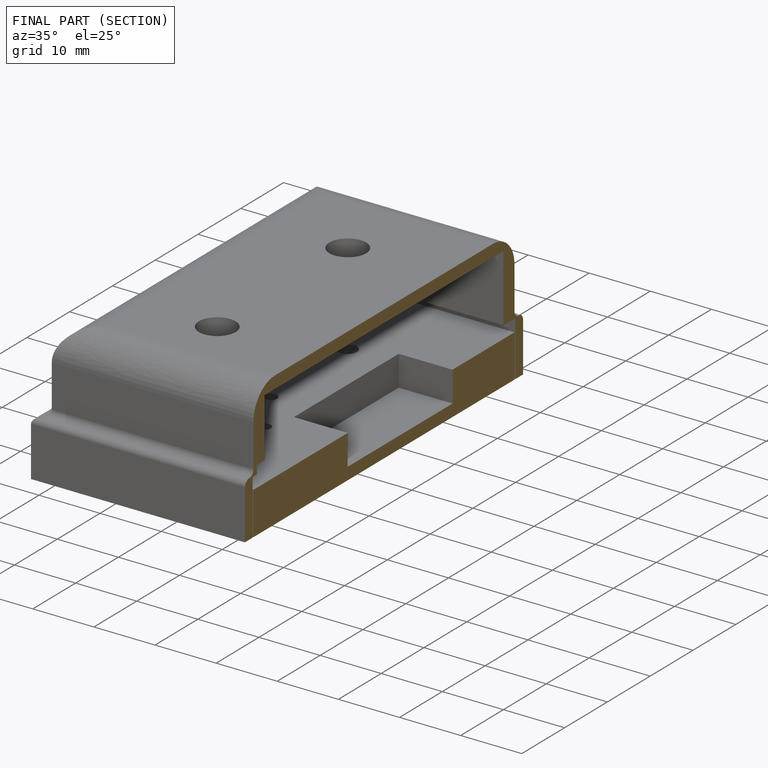
[diagram: finished part — half-section view (interior)]
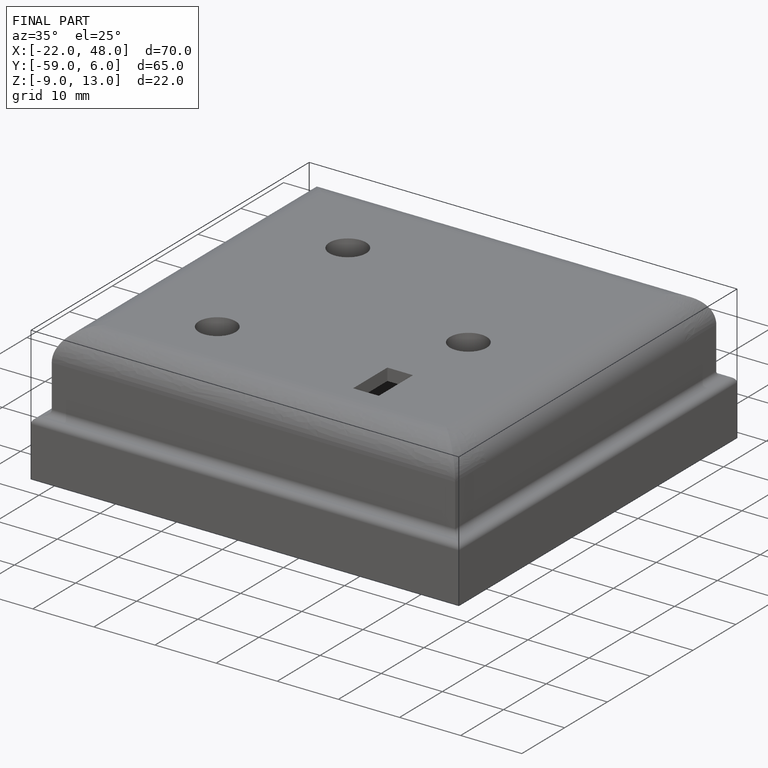
[diagram: finished part — iso view with bounding-box wireframe]
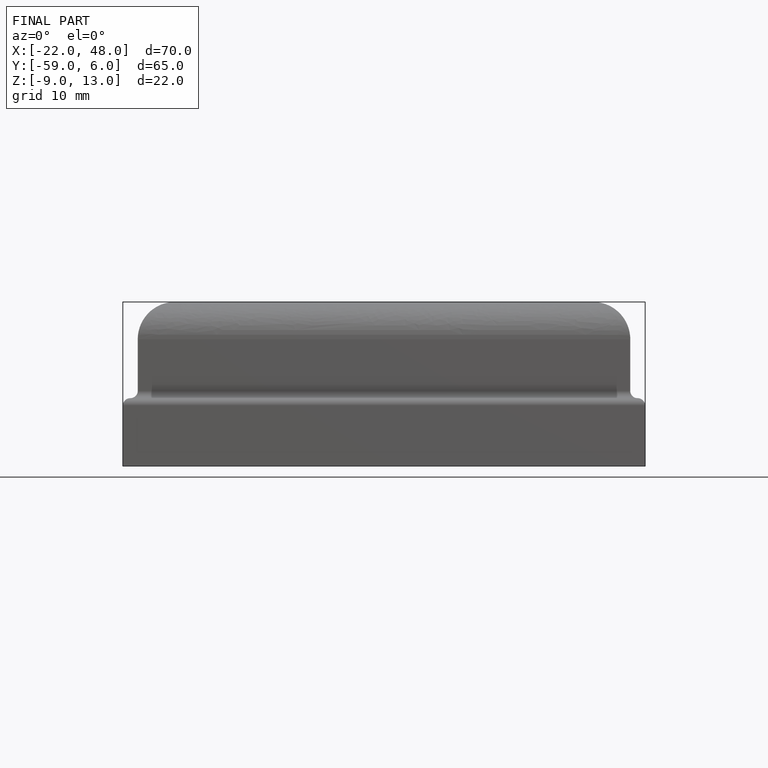
[diagram: finished part — front view with bounding-box wireframe]
